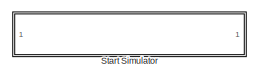
[diagram: root canvas - part 1/3, top left region]
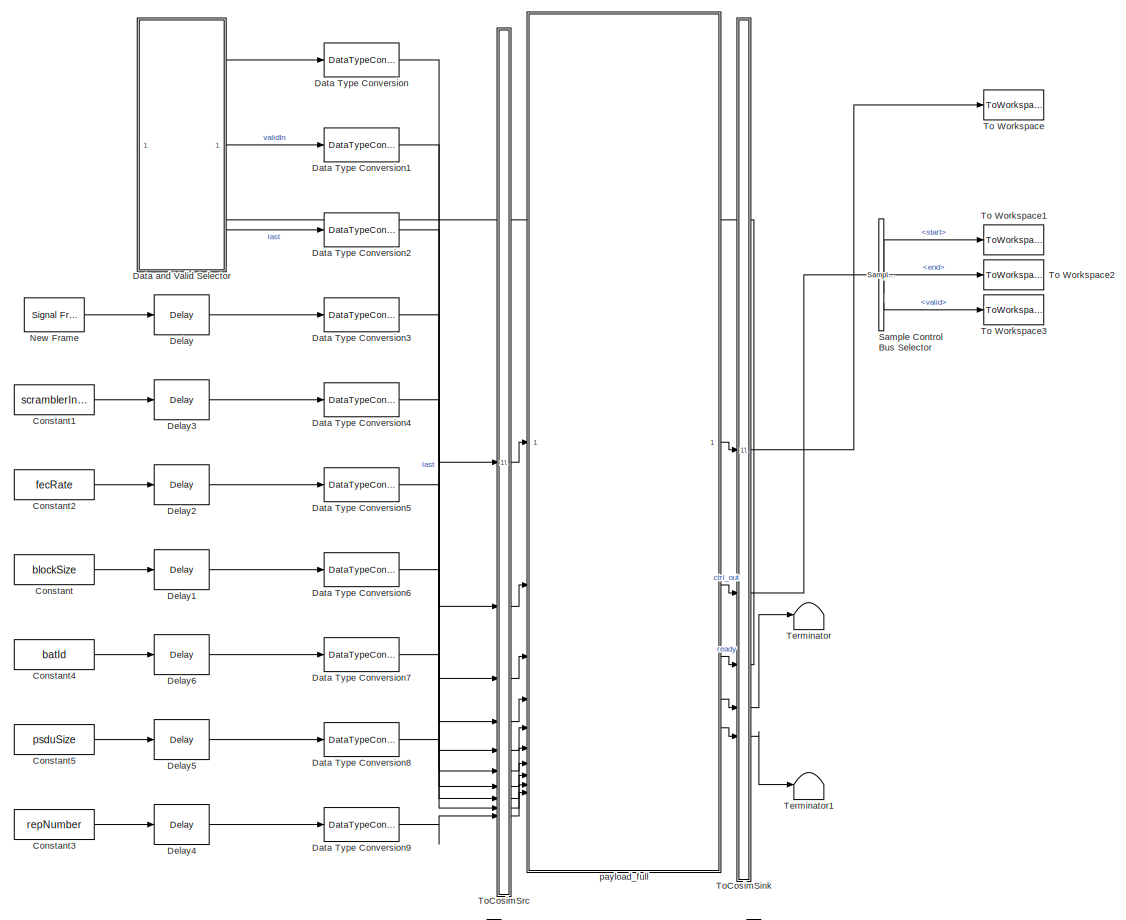
[diagram: root canvas - part 2/3, central region]
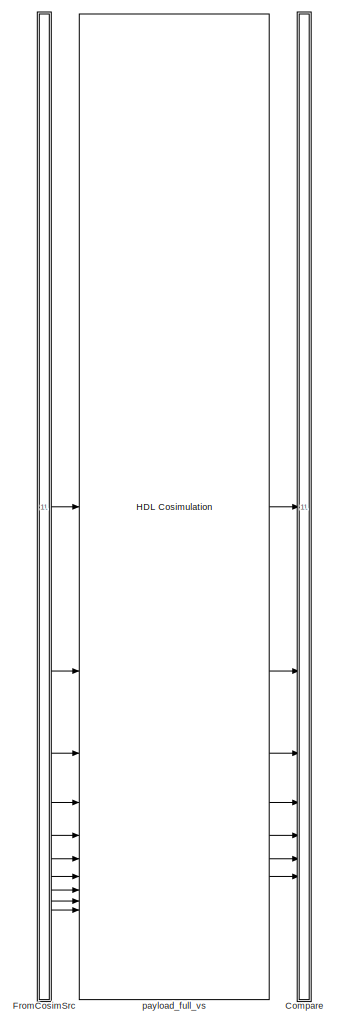
[diagram: root canvas - part 3/3, bottom right region]
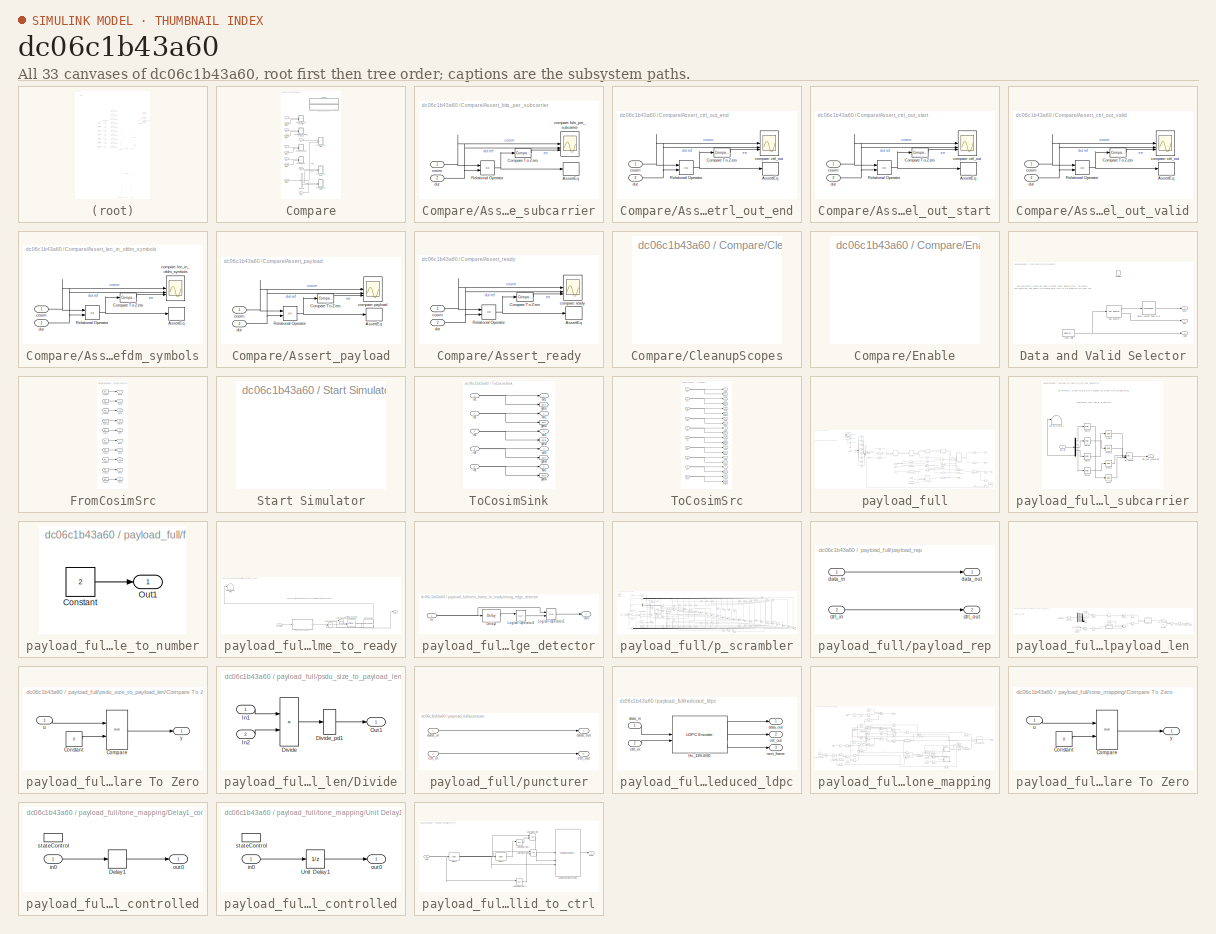
[diagram: thumbnail index - all 33 canvases of the model, root first then tree order]
MODEL slx_dc06c1b43a60
KIND model
CONFIG AbsTol = auto
CONFIG EnableMultiTasking = off
CONFIG FixedStep = auto
CONFIG MaxStep = auto
CONFIG MinStep = auto
CONFIG RelTol = 1e-3
CONFIG SampleTimeConstraint = Unconstrained
CONFIG SolverName = VariableStepAuto
CONFIG StartTime = 0.0
CONFIG StopTime = 10.0
BLOCK [SubSystem] Compare
BLOCK [SubSystem] Compare/Assert_bits_per_subcarrier
  LibrarySourceBlock = hdlmdlgenlib/AssertEq
BLOCK [Assertion] Compare/Assert_bits_per_subcarrier/AssertEq
BLOCK [Reference] Compare/Assert_bits_per_subcarrier/Compare To Zero  REF=simulink/Logic and Bit
Operations/Compare
To Zero
  SourceBlock = simulink/Logic and Bit\nOperations/Compare\nTo Zero
  SourceType = Compare To Zero
BLOCK [RelationalOperator] Compare/Assert_bits_per_subcarrier/Relational Operator
  InputSameDT = off
  Operator = ==
  OutDataTypeStr = boolean
BLOCK [Scope] Compare/Assert_bits_per_subcarrier/compare: bits_per_subcarrier
  Floating = off
  NumInputPorts = 3
  ScopeSpecificationString = Simulink.scopes.TimeScopeBlockCfg('CurrentConfiguration', extmgr.ConfigurationSet(extmgr.Configuration('Core','General UI',true,'MessageLogAutoOpenMode','for warn/fail messages','ShowCloseAll',true,'ShowBringAllForward',true),extmgr.Configuration('Core','Source UI',true,'PlaybackToolbar',true),extmgr.Configuration('Sources','WiredSimulink',true,'PointsPerSignal',50000,'DataLoggingDecimation','1','...<+3551ch>
BLOCK [Inport] Compare/Assert_bits_per_subcarrier/cosim
BLOCK [Inport] Compare/Assert_bits_per_subcarrier/dut
  Port = 2
BLOCK [SubSystem] Compare/Assert_ctrl_out_end
  LibrarySourceBlock = hdlmdlgenlib/AssertEq
BLOCK [Assertion] Compare/Assert_ctrl_out_end/AssertEq
BLOCK [Reference] Compare/Assert_ctrl_out_end/Compare To Zero  REF=simulink/Logic and Bit
Operations/Compare
To Zero
  SourceBlock = simulink/Logic and Bit\nOperations/Compare\nTo Zero
  SourceType = Compare To Zero
BLOCK [RelationalOperator] Compare/Assert_ctrl_out_end/Relational Operator
  InputSameDT = off
  Operator = ==
  OutDataTypeStr = boolean
BLOCK [Scope] Compare/Assert_ctrl_out_end/compare: ctrl_out
  Floating = off
  NumInputPorts = 3
  ScopeSpecificationString = Simulink.scopes.TimeScopeBlockCfg('CurrentConfiguration', extmgr.ConfigurationSet(extmgr.Configuration('Core','General UI',true,'MessageLogAutoOpenMode','for warn/fail messages','ShowCloseAll',true,'ShowBringAllForward',true),extmgr.Configuration('Core','Source UI',true,'PlaybackToolbar',true),extmgr.Configuration('Sources','WiredSimulink',true,'PointsPerSignal',50000,'DataLoggingDecimation','1','...<+3577ch>  <repeated x4 — deduplicated; at blocks: compare: ctrl_out, compare: len_in_ofdm_symbols>
BLOCK [Inport] Compare/Assert_ctrl_out_end/cosim
BLOCK [Inport] Compare/Assert_ctrl_out_end/dut
  Port = 2
BLOCK [SubSystem] Compare/Assert_ctrl_out_start
  LibrarySourceBlock = hdlmdlgenlib/AssertEq
BLOCK [Assertion] Compare/Assert_ctrl_out_start/AssertEq
BLOCK [Reference] Compare/Assert_ctrl_out_start/Compare To Zero  REF=simulink/Logic and Bit
Operations/Compare
To Zero
  SourceBlock = simulink/Logic and Bit\nOperations/Compare\nTo Zero
  SourceType = Compare To Zero
BLOCK [RelationalOperator] Compare/Assert_ctrl_out_start/Relational Operator
  InputSameDT = off
  Operator = ==
  OutDataTypeStr = boolean
BLOCK [Scope] Compare/Assert_ctrl_out_start/compare: ctrl_out
  Floating = off
  NumInputPorts = 3
BLOCK [Inport] Compare/Assert_ctrl_out_start/cosim
BLOCK [Inport] Compare/Assert_ctrl_out_start/dut
  Port = 2
BLOCK [SubSystem] Compare/Assert_ctrl_out_valid
  LibrarySourceBlock = hdlmdlgenlib/AssertEq
BLOCK [Assertion] Compare/Assert_ctrl_out_valid/AssertEq
BLOCK [Reference] Compare/Assert_ctrl_out_valid/Compare To Zero  REF=simulink/Logic and Bit
Operations/Compare
To Zero
  SourceBlock = simulink/Logic and Bit\nOperations/Compare\nTo Zero
  SourceType = Compare To Zero
BLOCK [RelationalOperator] Compare/Assert_ctrl_out_valid/Relational Operator
  InputSameDT = off
  Operator = ==
  OutDataTypeStr = boolean
BLOCK [Scope] Compare/Assert_ctrl_out_valid/compare: ctrl_out
  Floating = off
  NumInputPorts = 3
BLOCK [Inport] Compare/Assert_ctrl_out_valid/cosim
BLOCK [Inport] Compare/Assert_ctrl_out_valid/dut
  Port = 2
BLOCK [SubSystem] Compare/Assert_len_in_ofdm_symbols
  LibrarySourceBlock = hdlmdlgenlib/AssertEq
BLOCK [Assertion] Compare/Assert_len_in_ofdm_symbols/AssertEq
BLOCK [Reference] Compare/Assert_len_in_ofdm_symbols/Compare To Zero  REF=simulink/Logic and Bit
Operations/Compare
To Zero
  SourceBlock = simulink/Logic and Bit\nOperations/Compare\nTo Zero
  SourceType = Compare To Zero
BLOCK [RelationalOperator] Compare/Assert_len_in_ofdm_symbols/Relational Operator
  InputSameDT = off
  Operator = ==
  OutDataTypeStr = boolean
BLOCK [Scope] Compare/Assert_len_in_ofdm_symbols/compare: len_in_ofdm_symbols
  Floating = off
  NumInputPorts = 3
BLOCK [Inport] Compare/Assert_len_in_ofdm_symbols/cosim
BLOCK [Inport] Compare/Assert_len_in_ofdm_symbols/dut
  Port = 2
BLOCK [SubSystem] Compare/Assert_payload
  LibrarySourceBlock = hdlmdlgenlib/AssertEq
BLOCK [Assertion] Compare/Assert_payload/AssertEq
BLOCK [Reference] Compare/Assert_payload/Compare To Zero  REF=simulink/Logic and Bit
Operations/Compare
To Zero
  SourceBlock = simulink/Logic and Bit\nOperations/Compare\nTo Zero
  SourceType = Compare To Zero
BLOCK [RelationalOperator] Compare/Assert_payload/Relational Operator
  InputSameDT = off
  Operator = ==
  OutDataTypeStr = boolean
BLOCK [Scope] Compare/Assert_payload/compare: payload
  Floating = off
  NumInputPorts = 3
  ScopeSpecificationString = Simulink.scopes.TimeScopeBlockCfg('CurrentConfiguration', extmgr.ConfigurationSet(extmgr.Configuration('Core','General UI',true,'MessageLogAutoOpenMode','for warn/fail messages','ShowCloseAll',true,'ShowBringAllForward',true),extmgr.Configuration('Core','Source UI',true,'PlaybackToolbar',true),extmgr.Configuration('Sources','WiredSimulink',true,'PointsPerSignal',50000,'DataLoggingDecimation','1','...<+3551ch>
BLOCK [Inport] Compare/Assert_payload/cosim
BLOCK [Inport] Compare/Assert_payload/dut
  Port = 2
BLOCK [SubSystem] Compare/Assert_ready
  LibrarySourceBlock = hdlmdlgenlib/AssertEq
BLOCK [Assertion] Compare/Assert_ready/AssertEq
BLOCK [Reference] Compare/Assert_ready/Compare To Zero  REF=simulink/Logic and Bit
Operations/Compare
To Zero
  SourceBlock = simulink/Logic and Bit\nOperations/Compare\nTo Zero
  SourceType = Compare To Zero
BLOCK [RelationalOperator] Compare/Assert_ready/Relational Operator
  InputSameDT = off
  Operator = ==
  OutDataTypeStr = boolean
BLOCK [Scope] Compare/Assert_ready/compare: ready
  Floating = off
  NumInputPorts = 3
  ScopeSpecificationString = Simulink.scopes.TimeScopeBlockCfg('CurrentConfiguration', extmgr.ConfigurationSet(extmgr.Configuration('Core','General UI',true,'MessageLogAutoOpenMode','for warn/fail messages','ShowCloseAll',true,'ShowBringAllForward',true),extmgr.Configuration('Core','Source UI',true,'PlaybackToolbar',true),extmgr.Configuration('Sources','WiredSimulink',true,'PointsPerSignal',50000,'DataLoggingDecimation','1','...<+3552ch>
BLOCK [Inport] Compare/Assert_ready/cosim
BLOCK [Inport] Compare/Assert_ready/dut
  Port = 2
BLOCK [BusSelector] Compare/BusSel
  OutputSignals = start,end,valid
BLOCK [SubSystem] Compare/CleanupScopes
  OpenFcn = blkName = gcb; %self block\nidx = regexp(blkName, '/CleanupScopes$', 'once');\nblkParent = blkName(1:idx-1);\nblks=find_system(blkParent, 'LookUnderMasks', 'all','blocktype', 'Scope');\nfor itr = 1:length(blks)\n	 hScopeCfg = get_param(blks{itr},'ScopeConfiguration');\n	 hScopeCfg.Visible = ~ hScopeCfg.Visible;\nend\ndrawnow;
BLOCK [SubSystem] Compare/Enable
  OpenFcn = blkName = gcb;\nidx = regexp(blkName, '/Enable$', 'once');\nblkParent = blkName(1:idx-1);\nblks=find_system(blkParent, 'LookUnderMasks', 'all','blocktype', 'Assertion');\ne = get_param(blks{1}, 'Enabled');\nif strcmp(e, 'on'), f= 'off';, else, f = 'on';, end\nfor ii=1:length(blks), set_param(blks{ii}, 'Enabled', f);, end\nset_param(gcb, 'MaskDisplay',['fprintf(message(''hdlcoder:cosim:vnl_dblclick_assert...<+47ch>
BLOCK [From] Compare/from1
  GotoTag = out1
  TagVisibility = global
BLOCK [From] Compare/from2
  GotoTag = out2
  TagVisibility = global
BLOCK [From] Compare/from3
  GotoTag = out3
  TagVisibility = global
BLOCK [From] Compare/from4
  GotoTag = out4
  TagVisibility = global
BLOCK [From] Compare/from5
  GotoTag = out5
  TagVisibility = global
BLOCK [Inport] Compare/in1
BLOCK [Inport] Compare/in2
  Port = 2
BLOCK [Inport] Compare/in3
  Port = 3
BLOCK [Inport] Compare/in4
  Port = 4
BLOCK [Inport] Compare/in5
  Port = 5
BLOCK [Inport] Compare/in6
  Port = 6
BLOCK [Inport] Compare/in7
  Port = 7
BLOCK [Constant] Constant
  OutDataTypeStr = boolean
  SampleTime = 1/fs
  Value = blockSize
  VectorParams1D = off
BLOCK [Constant] Constant1
  OutDataTypeStr = boolean
  SampleTime = 1/fs
  Value = scramblerInit
  VectorParams1D = off
BLOCK [Constant] Constant2
  OutDataTypeStr = boolean
  SampleTime = 1/fs
  Value = fecRate
  VectorParams1D = off
BLOCK [Constant] Constant3
  OutDataTypeStr = boolean
  SampleTime = 1/fs
  Value = repNumber
  VectorParams1D = off
BLOCK [Constant] Constant4
  OutDataTypeStr = boolean
  SampleTime = 1/fs
  Value = batId
  VectorParams1D = off
BLOCK [Constant] Constant5
  OutDataTypeStr = boolean
  SampleTime = 1/fs
  Value = psduSize
  VectorParams1D = off
BLOCK [DataTypeConversion] Data Type Conversion
  OutDataTypeStr = uint8
  RndMeth = Floor
  SaturateOnIntegerOverflow = off
BLOCK [DataTypeConversion] Data Type Conversion1
  OutDataTypeStr = boolean
  RndMeth = Floor
  SaturateOnIntegerOverflow = off
BLOCK [DataTypeConversion] Data Type Conversion2
  OutDataTypeStr = boolean
  RndMeth = Floor
  SaturateOnIntegerOverflow = off
BLOCK [DataTypeConversion] Data Type Conversion3
  OutDataTypeStr = boolean
  RndMeth = Floor
  SaturateOnIntegerOverflow = off
BLOCK [DataTypeConversion] Data Type Conversion4
  OutDataTypeStr = boolean
  RndMeth = Floor
  SaturateOnIntegerOverflow = off
BLOCK [DataTypeConversion] Data Type Conversion5
  OutDataTypeStr = boolean
  RndMeth = Floor
  SaturateOnIntegerOverflow = off
BLOCK [DataTypeConversion] Data Type Conversion6
  OutDataTypeStr = boolean
  RndMeth = Floor
  SaturateOnIntegerOverflow = off
BLOCK [DataTypeConversion] Data Type Conversion7
  OutDataTypeStr = boolean
  RndMeth = Floor
  SaturateOnIntegerOverflow = off
BLOCK [DataTypeConversion] Data Type Conversion8
  OutDataTypeStr = boolean
  RndMeth = Floor
  SaturateOnIntegerOverflow = off
BLOCK [DataTypeConversion] Data Type Conversion9
  OutDataTypeStr = boolean
  RndMeth = Floor
  SaturateOnIntegerOverflow = off
BLOCK [SubSystem] Data and Valid Selector
  TreatAsAtomicUnit = on
BLOCK [LookupNDDirect] Data and Valid Selector/Direct Lookup Table (n-D)
  DiagnosticForOutOfRangeInput = Error
  NumberOfTableDimensions = 1
  Table = dataChars
  TableDataTypeStr = uint8
BLOCK [EnablePort] Data and Valid Selector/Enable
BLOCK [Reference] Data and Valid Selector/HDL Counter  REF=hdlsllib/Sources/HDL Counter
  SourceBlock = hdlsllib/Sources/HDL Counter
  SourceType = HDL Counter
BLOCK [Reference] Data and Valid Selector/Input Valid  REF=dspsrcs4/Signal From
Workspace
  SourceBlock = dspsrcs4/Signal From\nWorkspace
  SourceType = Signal From Workspace
BLOCK [Outport] Data and Valid Selector/data
  InitialOutput = 0
  VectorParamsAs1DForOutWhenUnconnected = off
BLOCK [Outport] Data and Valid Selector/last
  Port = 3
  VectorParamsAs1DForOutWhenUnconnected = off
BLOCK [Outport] Data and Valid Selector/valid
  InitialOutput = 0
  Port = 2
  VectorParamsAs1DForOutWhenUnconnected = off
BLOCK [Delay] Delay
  DelayLength = 1
  InitialCondition = 0
  InputPortMap = u0
  UseCircularBuffer = on
  UserDataPersistent = on
BLOCK [Delay] Delay1
  DelayLength = 1
  InitialCondition = 0
  InputPortMap = u0
  UseCircularBuffer = on
  UserDataPersistent = on
BLOCK [Delay] Delay2
  DelayLength = 1
  InitialCondition = 0
  InputPortMap = u0
  UseCircularBuffer = on
  UserDataPersistent = on
BLOCK [Delay] Delay3
  DelayLength = 1
  InitialCondition = 0
  InputPortMap = u0
  UseCircularBuffer = on
  UserDataPersistent = on
BLOCK [Delay] Delay4
  DelayLength = 1
  InitialCondition = 0
  InputPortMap = u0
  UseCircularBuffer = on
  UserDataPersistent = on
BLOCK [Delay] Delay5
  DelayLength = 1
  InitialCondition = 0
  InputPortMap = u0
  UseCircularBuffer = on
  UserDataPersistent = on
BLOCK [Delay] Delay6
  DelayLength = 1
  InitialCondition = 0
  InputPortMap = u0
  UseCircularBuffer = on
  UserDataPersistent = on
BLOCK [SubSystem] FromCosimSrc
BLOCK [From] FromCosimSrc/from1
  GotoTag = in1
  TagVisibility = global
BLOCK [From] FromCosimSrc/from10
  GotoTag = in10
  TagVisibility = global
BLOCK [From] FromCosimSrc/from2
  GotoTag = in2
  TagVisibility = global
BLOCK [From] FromCosimSrc/from3
  GotoTag = in3
  TagVisibility = global
BLOCK [From] FromCosimSrc/from4
  GotoTag = in4
  TagVisibility = global
BLOCK [From] FromCosimSrc/from5
  GotoTag = in5
  TagVisibility = global
BLOCK [From] FromCosimSrc/from6
  GotoTag = in6
  TagVisibility = global
BLOCK [From] FromCosimSrc/from7
  GotoTag = in7
  TagVisibility = global
BLOCK [From] FromCosimSrc/from8
  GotoTag = in8
  TagVisibility = global
BLOCK [From] FromCosimSrc/from9
  GotoTag = in9
  TagVisibility = global
BLOCK [Outport] FromCosimSrc/out1
BLOCK [Outport] FromCosimSrc/out10
  Port = 10
BLOCK [Outport] FromCosimSrc/out2
  Port = 2
BLOCK [Outport] FromCosimSrc/out3
  Port = 3
BLOCK [Outport] FromCosimSrc/out4
  Port = 4
BLOCK [Outport] FromCosimSrc/out5
  Port = 5
BLOCK [Outport] FromCosimSrc/out6
  Port = 6
BLOCK [Outport] FromCosimSrc/out7
  Port = 7
BLOCK [Outport] FromCosimSrc/out8
  Port = 8
BLOCK [Outport] FromCosimSrc/out9
  Port = 9
BLOCK [Reference] New Frame  REF=dspsrcs4/Signal From
Workspace
  SourceBlock = dspsrcs4/Signal From\nWorkspace
  SourceType = Signal From Workspace
BLOCK [Reference] Sample Control Bus Selector  REF=whdlutilities/Sample Control
Bus Selector
  SourceBlock = whdlutilities/Sample Control\nBus Selector
BLOCK [SubSystem] Start Simulator
  OpenFcn = cosimDirName = pwd;\ncd 'hdl_prj/hdlsrc/HDLPayloadFull';\n[s,r] = system('vivado -mode batch -source gm_HDLPayloadFull_vs.tcl','-echo');\ncd (cosimDirName);\nclear cosimDirName;\nif s\n   error('Failed to create Vivado HDL design DLL using script gm_HDLPayloadFull_vs.tcl.');\nend
BLOCK [Terminator] Terminator
BLOCK [Terminator] Terminator1
BLOCK [ToWorkspace] To Workspace
  MaxDataPoints = inf
  SampleTime = 1/(8*fs)
  Save2DSignal = 2-D array (concatenate along first dimension)
  VariableName = dataOut
BLOCK [ToWorkspace] To Workspace1
  MaxDataPoints = inf
  SampleTime = 1/(8*fs)
  Save2DSignal = 2-D array (concatenate along first dimension)
  VariableName = startOut
BLOCK [ToWorkspace] To Workspace2
  MaxDataPoints = inf
  SampleTime = 1/(8*fs)
  Save2DSignal = 2-D array (concatenate along first dimension)
  VariableName = endOut
BLOCK [ToWorkspace] To Workspace3
  MaxDataPoints = inf
  SampleTime = 1/(8*fs)
  Save2DSignal = 2-D array (concatenate along first dimension)
  VariableName = validOut
BLOCK [SubSystem] ToCosimSink
BLOCK [Goto] ToCosimSink/goto1
  GotoTag = out1
  TagVisibility = global
BLOCK [Goto] ToCosimSink/goto2
  GotoTag = out2
  TagVisibility = global
BLOCK [Goto] ToCosimSink/goto3
  GotoTag = out3
  TagVisibility = global
BLOCK [Goto] ToCosimSink/goto4
  GotoTag = out4
  TagVisibility = global
BLOCK [Goto] ToCosimSink/goto5
  GotoTag = out5
  TagVisibility = global
BLOCK [Inport] ToCosimSink/in1
BLOCK [Inport] ToCosimSink/in2
  Port = 2
BLOCK [Inport] ToCosimSink/in3
  Port = 3
BLOCK [Inport] ToCosimSink/in4
  Port = 4
BLOCK [Inport] ToCosimSink/in5
  Port = 5
BLOCK [Outport] ToCosimSink/out1
BLOCK [Outport] ToCosimSink/out2
  Port = 2
BLOCK [Outport] ToCosimSink/out3
  Port = 3
BLOCK [Outport] ToCosimSink/out4
  Port = 4
BLOCK [Outport] ToCosimSink/out5
  Port = 5
BLOCK [SubSystem] ToCosimSrc
BLOCK [Goto] ToCosimSrc/goto1
  GotoTag = in1
  TagVisibility = global
BLOCK [Goto] ToCosimSrc/goto10
  GotoTag = in10
  TagVisibility = global
BLOCK [Goto] ToCosimSrc/goto2
  GotoTag = in2
  TagVisibility = global
BLOCK [Goto] ToCosimSrc/goto3
  GotoTag = in3
  TagVisibility = global
BLOCK [Goto] ToCosimSrc/goto4
  GotoTag = in4
  TagVisibility = global
BLOCK [Goto] ToCosimSrc/goto5
  GotoTag = in5
  TagVisibility = global
BLOCK [Goto] ToCosimSrc/goto6
  GotoTag = in6
  TagVisibility = global
BLOCK [Goto] ToCosimSrc/goto7
  GotoTag = in7
  TagVisibility = global
BLOCK [Goto] ToCosimSrc/goto8
  GotoTag = in8
  TagVisibility = global
BLOCK [Goto] ToCosimSrc/goto9
  GotoTag = in9
  TagVisibility = global
BLOCK [Inport] ToCosimSrc/in1
BLOCK [Inport] ToCosimSrc/in10
  Port = 10
BLOCK [Inport] ToCosimSrc/in2
  Port = 2
BLOCK [Inport] ToCosimSrc/in3
  Port = 3
BLOCK [Inport] ToCosimSrc/in4
  Port = 4
BLOCK [Inport] ToCosimSrc/in5
  Port = 5
BLOCK [Inport] ToCosimSrc/in6
  Port = 6
BLOCK [Inport] ToCosimSrc/in7
  Port = 7
BLOCK [Inport] ToCosimSrc/in8
  Port = 8
BLOCK [Inport] ToCosimSrc/in9
  Port = 9
BLOCK [Outport] ToCosimSrc/out1
BLOCK [Outport] ToCosimSrc/out10
  Port = 10
BLOCK [Outport] ToCosimSrc/out2
  Port = 2
BLOCK [Outport] ToCosimSrc/out3
  Port = 3
BLOCK [Outport] ToCosimSrc/out4
  Port = 4
BLOCK [Outport] ToCosimSrc/out5
  Port = 5
BLOCK [Outport] ToCosimSrc/out6
  Port = 6
BLOCK [Outport] ToCosimSrc/out7
  Port = 7
BLOCK [Outport] ToCosimSrc/out8
  Port = 8
BLOCK [Outport] ToCosimSrc/out9
  Port = 9
BLOCK [SubSystem] payload_full
BLOCK [Delay] payload_full/Delay
  DelayLength = double(1)
  InitialCondition = 0
  InputPortMap = u0
  SampleTime = 0.125
BLOCK [Delay] payload_full/Delay1
  DelayLength = double(1)
  InitialCondition = 0
  InputPortMap = u0
  SampleTime = 0.125
BLOCK [Delay] payload_full/Delay2
  DelayLength = double(1)
  InitialCondition = 0
  InputPortMap = u0
  SampleTime = 1
BLOCK [Delay] payload_full/Delay3
  DelayLength = double(1)
  InitialCondition = 0
  InputPortMap = u0
  SampleTime = 1
BLOCK [Delay] payload_full/Delay4
  DelayLength = double(1)
  InitialCondition = 0
  InputPortMap = u0
  SampleTime = 1
BLOCK [Reference] payload_full/From  REF=hdlmdlgenlib/Buffer
  SourceBlock = hdlmdlgenlib/Buffer
  SourceType = Buffer/Wire
BLOCK [Reference] payload_full/Goto  REF=hdlmdlgenlib/Buffer
  SourceBlock = hdlmdlgenlib/Buffer
  SourceType = Buffer/Wire
BLOCK [Logic] payload_full/Logical Operator
  AllPortsSameDT = off
  OutDataTypeStr = boolean
  SampleTime = 1
BLOCK [Logic] payload_full/Logical Operator1
  AllPortsSameDT = off
  OutDataTypeStr = boolean
  SampleTime = 1
BLOCK [Logic] payload_full/Logical Operator5
  AllPortsSameDT = off
  Operator = OR
  OutDataTypeStr = boolean
  SampleTime = 1
BLOCK [RateTransition] payload_full/Rate Transition
  InitialCondition = double(0)
  OutPortSampleTimeMultiple = 8
  OutPortSampleTimeOpt = Multiple of input port sample time
BLOCK [RateTransition] payload_full/Rate Transition1
  OutPortSampleTimeMultiple = 1/8
  OutPortSampleTimeOpt = Multiple of input port sample time
BLOCK [RateTransition] payload_full/Rate Transition4
  InitialCondition = fi(0,0,4,0,"hex","0")
  OutPortSampleTimeMultiple = 1/8
  OutPortSampleTimeOpt = Multiple of input port sample time
BLOCK [RateTransition] payload_full/Rate Transition5
  InitialCondition = fi(0,0,29,0,"hex","00000000")
  OutPortSampleTimeMultiple = 1/8
  OutPortSampleTimeOpt = Multiple of input port sample time
BLOCK [RateTransition] payload_full/Rate Transition6
  OutPortSampleTimeMultiple = 1/8
  OutPortSampleTimeOpt = Multiple of input port sample time
BLOCK [Reference] payload_full/Serializer1D  REF=hdlsllib/HDL Operations/Serializer1D
  SourceBlock = hdlsllib/HDL Operations/Serializer1D
  SourceType = Serializer1D
BLOCK [Switch] payload_full/Switch1
  Criteria = u2 ~= 0
  InputSameDT = off
  OutDataTypeStr = boolean
  SampleTime = 1
  SaturateOnIntegerOverflow = off
  Threshold = double(0)
BLOCK [UnitDelay] payload_full/Unit Delay1
  SampleTime = 1
BLOCK [Inport] payload_full/bat_id
  OutDataTypeStr = boolean
  Port = 8
  PortDimensions = [1 5]
  SampleTime = 1
BLOCK [SubSystem] payload_full/batid_to_bits_per_subcarrier
BLOCK [Reference] payload_full/batid_to_bits_per_subcarrier/Bit Concat  REF=hdlsllib/Logic and Bit
Operations/Bit Concat
  SourceBlock = hdlsllib/Logic and Bit\nOperations/Bit Concat
  SourceType = Bit Concat
BLOCK [Reference] payload_full/batid_to_bits_per_subcarrier/From  REF=hdlmdlgenlib/Buffer
  SourceBlock = hdlmdlgenlib/Buffer
  SourceType = Buffer/Wire
BLOCK [Reference] payload_full/batid_to_bits_per_subcarrier/From1  REF=hdlmdlgenlib/Buffer
  SourceBlock = hdlmdlgenlib/Buffer
  SourceType = Buffer/Wire
BLOCK [Reference] payload_full/batid_to_bits_per_subcarrier/From2  REF=hdlmdlgenlib/Buffer
  SourceBlock = hdlmdlgenlib/Buffer
  SourceType = Buffer/Wire
BLOCK [Reference] payload_full/batid_to_bits_per_subcarrier/From3  REF=hdlmdlgenlib/Buffer
  SourceBlock = hdlmdlgenlib/Buffer
  SourceType = Buffer/Wire
BLOCK [Reference] payload_full/batid_to_bits_per_subcarrier/Goto1  REF=hdlmdlgenlib/Buffer
  SourceBlock = hdlmdlgenlib/Buffer
  SourceType = Buffer/Wire
BLOCK [Reference] payload_full/batid_to_bits_per_subcarrier/Goto2  REF=hdlmdlgenlib/Buffer
  SourceBlock = hdlmdlgenlib/Buffer
  SourceType = Buffer/Wire
BLOCK [Reference] payload_full/batid_to_bits_per_subcarrier/Goto3  REF=hdlmdlgenlib/Buffer
  SourceBlock = hdlmdlgenlib/Buffer
  SourceType = Buffer/Wire
BLOCK [Reference] payload_full/batid_to_bits_per_subcarrier/Goto4  REF=hdlmdlgenlib/Buffer
  SourceBlock = hdlmdlgenlib/Buffer
  SourceType = Buffer/Wire
BLOCK [Inport] payload_full/batid_to_bits_per_subcarrier/bat_id
  OutDataTypeStr = boolean
  PortDimensions = [1 5]
  SampleTime = 1
BLOCK [Terminator] payload_full/batid_to_bits_per_subcarrier/bat_id_4_term4
BLOCK [Outport] payload_full/batid_to_bits_per_subcarrier/bits_per_subcarrier
  SampleTime = 1
BLOCK [Demux] payload_full/batid_to_bits_per_subcarrier/t
  Outputs = 5
BLOCK [Outport] payload_full/bits_per_subcarrier
  Port = 5
  SampleTime = 0.125
BLOCK [Inport] payload_full/block_size
  OutDataTypeStr = boolean
  Port = 7
  PortDimensions = [1 2]
  SampleTime = 1
BLOCK [Terminator] payload_full/block_size_term6
BLOCK [Concatenate] payload_full/concatenate
  ConcatenateDimension = 2
  Mode = Multidimensional array
  NumInputs = 8
BLOCK [Outport] payload_full/ctrl_out
  Port = 2
  SampleTime = 0.125
BLOCK [Inport] payload_full/data_in
  OutDataTypeStr = uint8
  SampleTime = 1
BLOCK [Delay] payload_full/delayMatch
  DelayLength = double(3)
  InitialCondition = 0
  InputPortMap = u0
  SampleTime = 0.125
BLOCK [Delay] payload_full/delayMatch1
  DelayLength = double(2)
  InitialCondition = 0
  InputPortMap = u0
  SampleTime = 0.125
BLOCK [Delay] payload_full/delayMatch2
  DelayLength = double(30)
  InitialCondition = 0
  InputPortMap = u0
  SampleTime = 1
BLOCK [Delay] payload_full/delayMatch3
  DelayLength = double(240)
  InitialCondition = 0
  InputPortMap = u0
  SampleTime = 0.125
BLOCK [Inport] payload_full/fec_rate
  OutDataTypeStr = boolean
  Port = 6
  PortDimensions = [1 3]
  SampleTime = 1
BLOCK [Terminator] payload_full/fec_rate_term5
BLOCK [SubSystem] payload_full/fec_rate_to_number
BLOCK [Constant] payload_full/fec_rate_to_number/Constant
  OutDataTypeStr = fixdt(0,4,0)
  SampleTime = -1
  Value = 2
BLOCK [Outport] payload_full/fec_rate_to_number/Out1
  SampleTime = 1
BLOCK [Inport] payload_full/last_frame
  OutDataTypeStr = boolean
  Port = 3
  SampleTime = 1
BLOCK [Outport] payload_full/len_in_ofdm_symbols
  Port = 4
  SampleTime = 0.125
BLOCK [Inport] payload_full/new_frame
  OutDataTypeStr = boolean
  Port = 4
  SampleTime = 1
BLOCK [SubSystem] payload_full/next_frame_to_ready
BLOCK [Reference] payload_full/next_frame_to_ready/HDL Counter  REF=hdlsllib/Sources/HDL Counter
  SourceBlock = hdlsllib/Sources/HDL Counter
  SourceType = HDL Counter
BLOCK [Terminator] payload_full/next_frame_to_ready/HDL Counter_term0
BLOCK [Logic] payload_full/next_frame_to_ready/Logical Operator2
  AllPortsSameDT = off
  IconShape = distinctive
  Operator = NOT
  OutDataTypeStr = boolean
BLOCK [Logic] payload_full/next_frame_to_ready/Logical Operator3
  AllPortsSameDT = off
  IconShape = distinctive
  Operator = OR
  OutDataTypeStr = boolean
BLOCK [Reference] payload_full/next_frame_to_ready/Unit Delay Enabled Synchronous  REF=hdlsllib/Discrete/Unit Delay Enabled
Synchronous
  SourceBlock = hdlsllib/Discrete/Unit Delay Enabled\nSynchronous
  SourceType = Unit Delay Enabled Synchronous
BLOCK [Inport] payload_full/next_frame_to_ready/next_frame
  OutDataTypeStr = boolean
  SampleTime = 1
BLOCK [Outport] payload_full/next_frame_to_ready/ready
  SampleTime = 1
BLOCK [SubSystem] payload_full/next_frame_to_ready/rising_edge_detector
BLOCK [Delay] payload_full/next_frame_to_ready/rising_edge_detector/Delay2
  DelayLength = 1
  InitialCondition = 0
  InputPortMap = u0
  UseCircularBuffer = on
  UserDataPersistent = on
BLOCK [Inport] payload_full/next_frame_to_ready/rising_edge_detector/In
  OutDataTypeStr = boolean
  SampleTime = 1
BLOCK [Logic] payload_full/next_frame_to_ready/rising_edge_detector/Logical Operator1
  AllPortsSameDT = off
  IconShape = distinctive
  OutDataTypeStr = boolean
BLOCK [Logic] payload_full/next_frame_to_ready/rising_edge_detector/Logical Operator2
  AllPortsSameDT = off
  IconShape = distinctive
  Operator = NOT
  OutDataTypeStr = boolean
BLOCK [Outport] payload_full/next_frame_to_ready/rising_edge_detector/Out
  SampleTime = 1
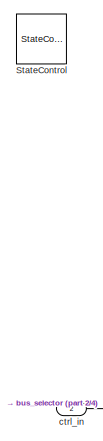
[diagram: payload_full/p_scrambler - part 1/4, top left region]
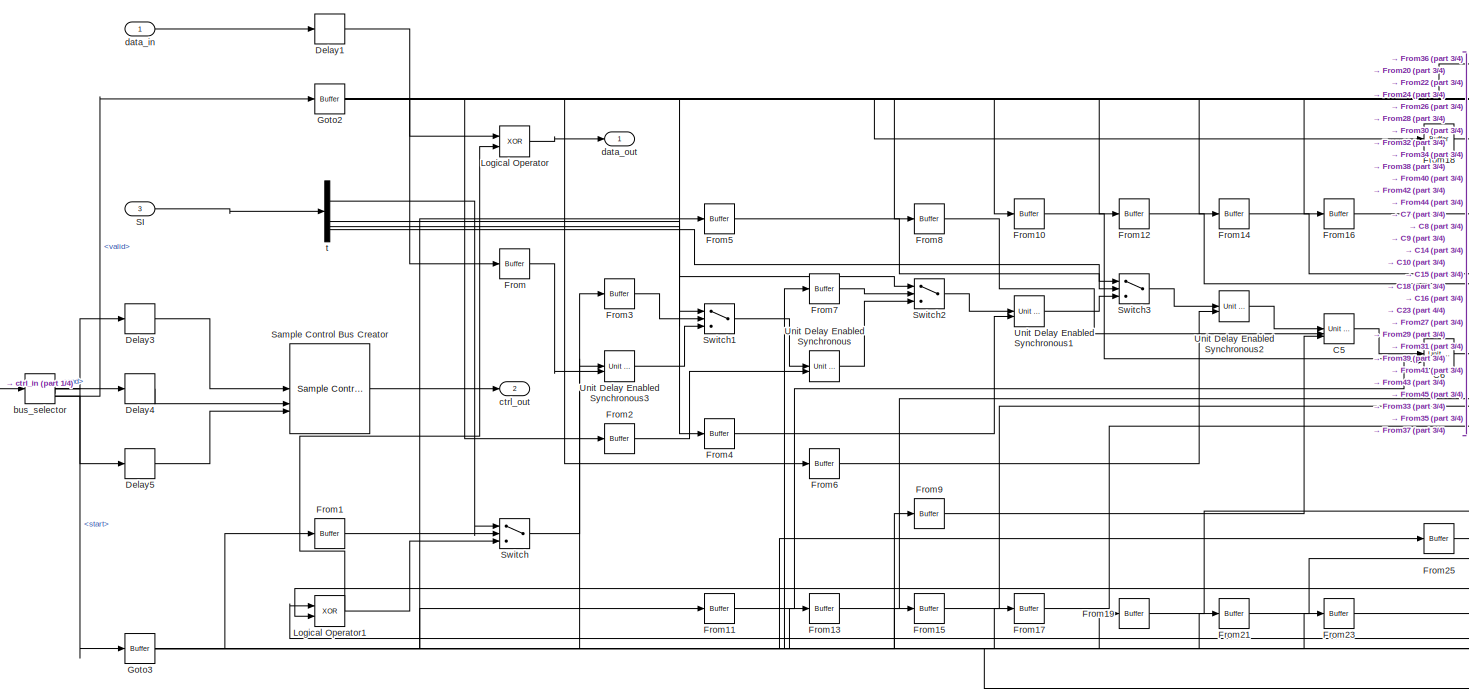
[diagram: payload_full/p_scrambler - part 2/4, left side, full height]
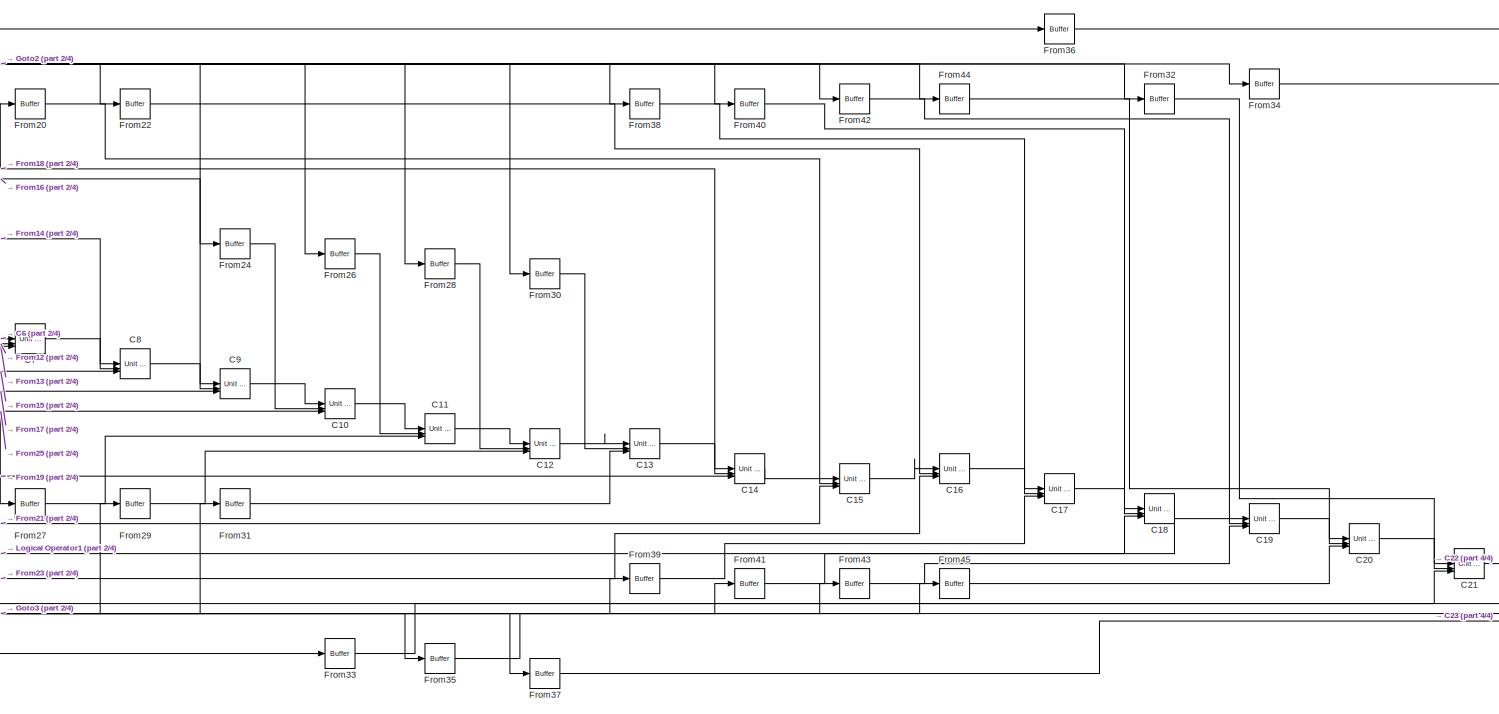
[diagram: payload_full/p_scrambler - part 3/4, right side, full height]
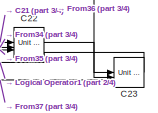
[diagram: payload_full/p_scrambler - part 4/4, bottom right region]
BLOCK [SubSystem] payload_full/p_scrambler
BLOCK [Reference] payload_full/p_scrambler/C10  REF=hdlsllib/Discrete/Unit Delay Enabled Resettable
Synchronous
  SourceBlock = hdlsllib/Discrete/Unit Delay Enabled Resettable\nSynchronous
  SourceType = Unit Delay Enabled Resettable Synchronous
BLOCK [Reference] payload_full/p_scrambler/C11  REF=hdlsllib/Discrete/Unit Delay Enabled Resettable
Synchronous
  SourceBlock = hdlsllib/Discrete/Unit Delay Enabled Resettable\nSynchronous
  SourceType = Unit Delay Enabled Resettable Synchronous
BLOCK [Reference] payload_full/p_scrambler/C12  REF=hdlsllib/Discrete/Unit Delay Enabled Resettable
Synchronous
  SourceBlock = hdlsllib/Discrete/Unit Delay Enabled Resettable\nSynchronous
  SourceType = Unit Delay Enabled Resettable Synchronous
BLOCK [Reference] payload_full/p_scrambler/C13  REF=hdlsllib/Discrete/Unit Delay Enabled Resettable
Synchronous
  SourceBlock = hdlsllib/Discrete/Unit Delay Enabled Resettable\nSynchronous
  SourceType = Unit Delay Enabled Resettable Synchronous
BLOCK [Reference] payload_full/p_scrambler/C14  REF=hdlsllib/Discrete/Unit Delay Enabled Resettable
Synchronous
  SourceBlock = hdlsllib/Discrete/Unit Delay Enabled Resettable\nSynchronous
  SourceType = Unit Delay Enabled Resettable Synchronous
BLOCK [Reference] payload_full/p_scrambler/C15  REF=hdlsllib/Discrete/Unit Delay Enabled Resettable
Synchronous
  SourceBlock = hdlsllib/Discrete/Unit Delay Enabled Resettable\nSynchronous
  SourceType = Unit Delay Enabled Resettable Synchronous
BLOCK [Reference] payload_full/p_scrambler/C16  REF=hdlsllib/Discrete/Unit Delay Enabled Resettable
Synchronous
  SourceBlock = hdlsllib/Discrete/Unit Delay Enabled Resettable\nSynchronous
  SourceType = Unit Delay Enabled Resettable Synchronous
BLOCK [Reference] payload_full/p_scrambler/C17  REF=hdlsllib/Discrete/Unit Delay Enabled Resettable
Synchronous
  SourceBlock = hdlsllib/Discrete/Unit Delay Enabled Resettable\nSynchronous
  SourceType = Unit Delay Enabled Resettable Synchronous
BLOCK [Reference] payload_full/p_scrambler/C18  REF=hdlsllib/Discrete/Unit Delay Enabled Resettable
Synchronous
  SourceBlock = hdlsllib/Discrete/Unit Delay Enabled Resettable\nSynchronous
  SourceType = Unit Delay Enabled Resettable Synchronous
BLOCK [Reference] payload_full/p_scrambler/C19  REF=hdlsllib/Discrete/Unit Delay Enabled Resettable
Synchronous
  SourceBlock = hdlsllib/Discrete/Unit Delay Enabled Resettable\nSynchronous
  SourceType = Unit Delay Enabled Resettable Synchronous
BLOCK [Reference] payload_full/p_scrambler/C20  REF=hdlsllib/Discrete/Unit Delay Enabled Resettable
Synchronous
  SourceBlock = hdlsllib/Discrete/Unit Delay Enabled Resettable\nSynchronous
  SourceType = Unit Delay Enabled Resettable Synchronous
BLOCK [Reference] payload_full/p_scrambler/C21  REF=hdlsllib/Discrete/Unit Delay Enabled Resettable
Synchronous
  SourceBlock = hdlsllib/Discrete/Unit Delay Enabled Resettable\nSynchronous
  SourceType = Unit Delay Enabled Resettable Synchronous
BLOCK [Reference] payload_full/p_scrambler/C22  REF=hdlsllib/Discrete/Unit Delay Enabled Resettable
Synchronous
  SourceBlock = hdlsllib/Discrete/Unit Delay Enabled Resettable\nSynchronous
  SourceType = Unit Delay Enabled Resettable Synchronous
BLOCK [Reference] payload_full/p_scrambler/C23  REF=hdlsllib/Discrete/Unit Delay Enabled Resettable
Synchronous
  SourceBlock = hdlsllib/Discrete/Unit Delay Enabled Resettable\nSynchronous
  SourceType = Unit Delay Enabled Resettable Synchronous
BLOCK [Reference] payload_full/p_scrambler/C5  REF=hdlsllib/Discrete/Unit Delay Enabled Resettable
Synchronous
  SourceBlock = hdlsllib/Discrete/Unit Delay Enabled Resettable\nSynchronous
  SourceType = Unit Delay Enabled Resettable Synchronous
BLOCK [Reference] payload_full/p_scrambler/C6  REF=hdlsllib/Discrete/Unit Delay Enabled Resettable
Synchronous
  SourceBlock = hdlsllib/Discrete/Unit Delay Enabled Resettable\nSynchronous
  SourceType = Unit Delay Enabled Resettable Synchronous
BLOCK [Reference] payload_full/p_scrambler/C7  REF=hdlsllib/Discrete/Unit Delay Enabled Resettable
Synchronous
  SourceBlock = hdlsllib/Discrete/Unit Delay Enabled Resettable\nSynchronous
  SourceType = Unit Delay Enabled Resettable Synchronous
BLOCK [Reference] payload_full/p_scrambler/C8  REF=hdlsllib/Discrete/Unit Delay Enabled Resettable
Synchronous
  SourceBlock = hdlsllib/Discrete/Unit Delay Enabled Resettable\nSynchronous
  SourceType = Unit Delay Enabled Resettable Synchronous
BLOCK [Reference] payload_full/p_scrambler/C9  REF=hdlsllib/Discrete/Unit Delay Enabled Resettable
Synchronous
  SourceBlock = hdlsllib/Discrete/Unit Delay Enabled Resettable\nSynchronous
  SourceType = Unit Delay Enabled Resettable Synchronous
BLOCK [Delay] payload_full/p_scrambler/Delay1
  DelayLength = double(1)
  InitialCondition = 0
  InputPortMap = u0
  SampleTime = 0.125
BLOCK [Delay] payload_full/p_scrambler/Delay3
  DelayLength = double(1)
  InitialCondition = 0
  InputPortMap = u0
  SampleTime = 0.125
BLOCK [Delay] payload_full/p_scrambler/Delay4
  DelayLength = double(1)
  InitialCondition = 0
  InputPortMap = u0
  SampleTime = 0.125
BLOCK [Delay] payload_full/p_scrambler/Delay5
  DelayLength = double(1)
  InitialCondition = 0
  InputPortMap = u0
  SampleTime = 0.125
BLOCK [Reference] payload_full/p_scrambler/From  REF=hdlmdlgenlib/Buffer
  SourceBlock = hdlmdlgenlib/Buffer
  SourceType = Buffer/Wire
BLOCK [Reference] payload_full/p_scrambler/From1  REF=hdlmdlgenlib/Buffer
  SourceBlock = hdlmdlgenlib/Buffer
  SourceType = Buffer/Wire
BLOCK [Reference] payload_full/p_scrambler/From10  REF=hdlmdlgenlib/Buffer
  SourceBlock = hdlmdlgenlib/Buffer
  SourceType = Buffer/Wire
BLOCK [Reference] payload_full/p_scrambler/From11  REF=hdlmdlgenlib/Buffer
  SourceBlock = hdlmdlgenlib/Buffer
  SourceType = Buffer/Wire
BLOCK [Reference] payload_full/p_scrambler/From12  REF=hdlmdlgenlib/Buffer
  SourceBlock = hdlmdlgenlib/Buffer
  SourceType = Buffer/Wire
BLOCK [Reference] payload_full/p_scrambler/From13  REF=hdlmdlgenlib/Buffer
  SourceBlock = hdlmdlgenlib/Buffer
  SourceType = Buffer/Wire
BLOCK [Reference] payload_full/p_scrambler/From14  REF=hdlmdlgenlib/Buffer
  SourceBlock = hdlmdlgenlib/Buffer
  SourceType = Buffer/Wire
BLOCK [Reference] payload_full/p_scrambler/From15  REF=hdlmdlgenlib/Buffer
  SourceBlock = hdlmdlgenlib/Buffer
  SourceType = Buffer/Wire
BLOCK [Reference] payload_full/p_scrambler/From16  REF=hdlmdlgenlib/Buffer
  SourceBlock = hdlmdlgenlib/Buffer
  SourceType = Buffer/Wire
BLOCK [Reference] payload_full/p_scrambler/From17  REF=hdlmdlgenlib/Buffer
  SourceBlock = hdlmdlgenlib/Buffer
  SourceType = Buffer/Wire
BLOCK [Reference] payload_full/p_scrambler/From18  REF=hdlmdlgenlib/Buffer
  SourceBlock = hdlmdlgenlib/Buffer
  SourceType = Buffer/Wire
BLOCK [Reference] payload_full/p_scrambler/From19  REF=hdlmdlgenlib/Buffer
  SourceBlock = hdlmdlgenlib/Buffer
  SourceType = Buffer/Wire
BLOCK [Reference] payload_full/p_scrambler/From2  REF=hdlmdlgenlib/Buffer
  SourceBlock = hdlmdlgenlib/Buffer
  SourceType = Buffer/Wire
BLOCK [Reference] payload_full/p_scrambler/From20  REF=hdlmdlgenlib/Buffer
  SourceBlock = hdlmdlgenlib/Buffer
  SourceType = Buffer/Wire
BLOCK [Reference] payload_full/p_scrambler/From21  REF=hdlmdlgenlib/Buffer
  SourceBlock = hdlmdlgenlib/Buffer
  SourceType = Buffer/Wire
BLOCK [Reference] payload_full/p_scrambler/From22  REF=hdlmdlgenlib/Buffer
  SourceBlock = hdlmdlgenlib/Buffer
  SourceType = Buffer/Wire
BLOCK [Reference] payload_full/p_scrambler/From23  REF=hdlmdlgenlib/Buffer
  SourceBlock = hdlmdlgenlib/Buffer
  SourceType = Buffer/Wire
BLOCK [Reference] payload_full/p_scrambler/From24  REF=hdlmdlgenlib/Buffer
  SourceBlock = hdlmdlgenlib/Buffer
  SourceType = Buffer/Wire
BLOCK [Reference] payload_full/p_scrambler/From25  REF=hdlmdlgenlib/Buffer
  SourceBlock = hdlmdlgenlib/Buffer
  SourceType = Buffer/Wire
BLOCK [Reference] payload_full/p_scrambler/From26  REF=hdlmdlgenlib/Buffer
  SourceBlock = hdlmdlgenlib/Buffer
  SourceType = Buffer/Wire
BLOCK [Reference] payload_full/p_scrambler/From27  REF=hdlmdlgenlib/Buffer
  SourceBlock = hdlmdlgenlib/Buffer
  SourceType = Buffer/Wire
BLOCK [Reference] payload_full/p_scrambler/From28  REF=hdlmdlgenlib/Buffer
  SourceBlock = hdlmdlgenlib/Buffer
  SourceType = Buffer/Wire
BLOCK [Reference] payload_full/p_scrambler/From29  REF=hdlmdlgenlib/Buffer
  SourceBlock = hdlmdlgenlib/Buffer
  SourceType = Buffer/Wire
BLOCK [Reference] payload_full/p_scrambler/From3  REF=hdlmdlgenlib/Buffer
  SourceBlock = hdlmdlgenlib/Buffer
  SourceType = Buffer/Wire
BLOCK [Reference] payload_full/p_scrambler/From30  REF=hdlmdlgenlib/Buffer
  SourceBlock = hdlmdlgenlib/Buffer
  SourceType = Buffer/Wire
BLOCK [Reference] payload_full/p_scrambler/From31  REF=hdlmdlgenlib/Buffer
  SourceBlock = hdlmdlgenlib/Buffer
  SourceType = Buffer/Wire
BLOCK [Reference] payload_full/p_scrambler/From32  REF=hdlmdlgenlib/Buffer
  SourceBlock = hdlmdlgenlib/Buffer
  SourceType = Buffer/Wire
BLOCK [Reference] payload_full/p_scrambler/From33  REF=hdlmdlgenlib/Buffer
  SourceBlock = hdlmdlgenlib/Buffer
  SourceType = Buffer/Wire
BLOCK [Reference] payload_full/p_scrambler/From34  REF=hdlmdlgenlib/Buffer
  SourceBlock = hdlmdlgenlib/Buffer
  SourceType = Buffer/Wire
BLOCK [Reference] payload_full/p_scrambler/From35  REF=hdlmdlgenlib/Buffer
  SourceBlock = hdlmdlgenlib/Buffer
  SourceType = Buffer/Wire
BLOCK [Reference] payload_full/p_scrambler/From36  REF=hdlmdlgenlib/Buffer
  SourceBlock = hdlmdlgenlib/Buffer
  SourceType = Buffer/Wire
BLOCK [Reference] payload_full/p_scrambler/From37  REF=hdlmdlgenlib/Buffer
  SourceBlock = hdlmdlgenlib/Buffer
  SourceType = Buffer/Wire
BLOCK [Reference] payload_full/p_scrambler/From38  REF=hdlmdlgenlib/Buffer
  SourceBlock = hdlmdlgenlib/Buffer
  SourceType = Buffer/Wire
BLOCK [Reference] payload_full/p_scrambler/From39  REF=hdlmdlgenlib/Buffer
  SourceBlock = hdlmdlgenlib/Buffer
  SourceType = Buffer/Wire
BLOCK [Reference] payload_full/p_scrambler/From4  REF=hdlmdlgenlib/Buffer
  SourceBlock = hdlmdlgenlib/Buffer
  SourceType = Buffer/Wire
BLOCK [Reference] payload_full/p_scrambler/From40  REF=hdlmdlgenlib/Buffer
  SourceBlock = hdlmdlgenlib/Buffer
  SourceType = Buffer/Wire
BLOCK [Reference] payload_full/p_scrambler/From41  REF=hdlmdlgenlib/Buffer
  SourceBlock = hdlmdlgenlib/Buffer
  SourceType = Buffer/Wire
BLOCK [Reference] payload_full/p_scrambler/From42  REF=hdlmdlgenlib/Buffer
  SourceBlock = hdlmdlgenlib/Buffer
  SourceType = Buffer/Wire
BLOCK [Reference] payload_full/p_scrambler/From43  REF=hdlmdlgenlib/Buffer
  SourceBlock = hdlmdlgenlib/Buffer
  SourceType = Buffer/Wire
BLOCK [Reference] payload_full/p_scrambler/From44  REF=hdlmdlgenlib/Buffer
  SourceBlock = hdlmdlgenlib/Buffer
  SourceType = Buffer/Wire
BLOCK [Reference] payload_full/p_scrambler/From45  REF=hdlmdlgenlib/Buffer
  SourceBlock = hdlmdlgenlib/Buffer
  SourceType = Buffer/Wire
BLOCK [Reference] payload_full/p_scrambler/From5  REF=hdlmdlgenlib/Buffer
  SourceBlock = hdlmdlgenlib/Buffer
  SourceType = Buffer/Wire
BLOCK [Reference] payload_full/p_scrambler/From6  REF=hdlmdlgenlib/Buffer
  SourceBlock = hdlmdlgenlib/Buffer
  SourceType = Buffer/Wire
BLOCK [Reference] payload_full/p_scrambler/From7  REF=hdlmdlgenlib/Buffer
  SourceBlock = hdlmdlgenlib/Buffer
  SourceType = Buffer/Wire
BLOCK [Reference] payload_full/p_scrambler/From8  REF=hdlmdlgenlib/Buffer
  SourceBlock = hdlmdlgenlib/Buffer
  SourceType = Buffer/Wire
BLOCK [Reference] payload_full/p_scrambler/From9  REF=hdlmdlgenlib/Buffer
  SourceBlock = hdlmdlgenlib/Buffer
  SourceType = Buffer/Wire
BLOCK [Reference] payload_full/p_scrambler/Goto2  REF=hdlmdlgenlib/Buffer
  SourceBlock = hdlmdlgenlib/Buffer
  SourceType = Buffer/Wire
BLOCK [Reference] payload_full/p_scrambler/Goto3  REF=hdlmdlgenlib/Buffer
  SourceBlock = hdlmdlgenlib/Buffer
  SourceType = Buffer/Wire
BLOCK [Logic] payload_full/p_scrambler/Logical Operator
  AllPortsSameDT = off
  Operator = XOR
  OutDataTypeStr = boolean
  SampleTime = 0.125
BLOCK [Logic] payload_full/p_scrambler/Logical Operator1
  AllPortsSameDT = off
  Operator = XOR
  OutDataTypeStr = boolean
  SampleTime = 0.125
BLOCK [Inport] payload_full/p_scrambler/SI
  OutDataTypeStr = boolean
  Port = 3
  PortDimensions = [1 4]
  SampleTime = 0.125
BLOCK [Reference] payload_full/p_scrambler/Sample Control Bus Creator  REF=whdlutilities/Sample Control
Bus Creator
  SourceBlock = whdlutilities/Sample Control\nBus Creator
  SourceType = Sample Control Bus Creator
BLOCK [StateControl] payload_full/p_scrambler/StateControl
  StateControl = Synchronous
BLOCK [Switch] payload_full/p_scrambler/Switch
  Criteria = u2 ~= 0
  InputSameDT = off
  OutDataTypeStr = boolean
  SampleTime = 0.125
  SaturateOnIntegerOverflow = off
  Threshold = double(0)
BLOCK [Switch] payload_full/p_scrambler/Switch1
  Criteria = u2 ~= 0
  InputSameDT = off
  OutDataTypeStr = boolean
  SampleTime = 0.125
  SaturateOnIntegerOverflow = off
  Threshold = double(0)
BLOCK [Switch] payload_full/p_scrambler/Switch2
  Criteria = u2 ~= 0
  InputSameDT = off
  OutDataTypeStr = boolean
  SampleTime = 0.125
  SaturateOnIntegerOverflow = off
  Threshold = double(0)
BLOCK [Switch] payload_full/p_scrambler/Switch3
  Criteria = u2 ~= 0
  InputSameDT = off
  OutDataTypeStr = boolean
  SampleTime = 0.125
  SaturateOnIntegerOverflow = off
  Threshold = double(0)
BLOCK [Reference] payload_full/p_scrambler/Unit Delay Enabled Synchronous  REF=hdlsllib/Discrete/Unit Delay Enabled
Synchronous
  SourceBlock = hdlsllib/Discrete/Unit Delay Enabled\nSynchronous
  SourceType = Unit Delay Enabled Synchronous
BLOCK [Reference] payload_full/p_scrambler/Unit Delay Enabled Synchronous1  REF=hdlsllib/Discrete/Unit Delay Enabled
Synchronous
  SourceBlock = hdlsllib/Discrete/Unit Delay Enabled\nSynchronous
  SourceType = Unit Delay Enabled Synchronous
BLOCK [Reference] payload_full/p_scrambler/Unit Delay Enabled Synchronous2  REF=hdlsllib/Discrete/Unit Delay Enabled
Synchronous
  SourceBlock = hdlsllib/Discrete/Unit Delay Enabled\nSynchronous
  SourceType = Unit Delay Enabled Synchronous
BLOCK [Reference] payload_full/p_scrambler/Unit Delay Enabled Synchronous3  REF=hdlsllib/Discrete/Unit Delay Enabled
Synchronous
  SourceBlock = hdlsllib/Discrete/Unit Delay Enabled\nSynchronous
  SourceType = Unit Delay Enabled Synchronous
BLOCK [BusSelector] payload_full/p_scrambler/bus_selector
  OutputSignals = start,end,valid
BLOCK [Inport] payload_full/p_scrambler/ctrl_in
  Port = 2
  SampleTime = 0.125
BLOCK [Outport] payload_full/p_scrambler/ctrl_out
  Port = 2
  SampleTime = 0.125
BLOCK [Inport] payload_full/p_scrambler/data_in
  OutDataTypeStr = fixdt(0, 1, 0)
  SampleTime = 0.125
BLOCK [Outport] payload_full/p_scrambler/data_out
  SampleTime = 0.125
BLOCK [Demux] payload_full/p_scrambler/t
BLOCK [Outport] payload_full/payload
  SampleTime = 0.125
BLOCK [SubSystem] payload_full/payload_rep
BLOCK [Inport] payload_full/payload_rep/ctrl_in
  Port = 2
  SampleTime = 0.125
BLOCK [Outport] payload_full/payload_rep/ctrl_out
  Port = 2
  SampleTime = 0.125
BLOCK [Inport] payload_full/payload_rep/data_in
  OutDataTypeStr = boolean
  SampleTime = 0.125
BLOCK [Outport] payload_full/payload_rep/data_out
  SampleTime = 0.125
BLOCK [Inport] payload_full/psdu_size
  OutDataTypeStr = boolean
  Port = 9
  PortDimensions = [1 24]
  SampleTime = 1
BLOCK [SubSystem] payload_full/psdu_size_to_payload_len
BLOCK [Sum] payload_full/psdu_size_to_payload_len/Add
  AccumDataTypeStr = fixdt(0, 29, 0)
  IconShape = rectangular
  OutDataTypeStr = fixdt(0, 29, 0)
  SampleTime = 1
BLOCK [SubSystem] payload_full/psdu_size_to_payload_len/Compare To Zero
BLOCK [RelationalOperator] payload_full/psdu_size_to_payload_len/Compare To Zero/Compare
  Operator = ==
  OutDataTypeStr = boolean
BLOCK [Constant] payload_full/psdu_size_to_payload_len/Compare To Zero/Constant
  DisableCoverage = on
  OutDataTypeStr = fixdt(0, 12, 0)
  PreserveConstantTs = on
  SampleTime = -1
  Value = 0
BLOCK [Inport] payload_full/psdu_size_to_payload_len/Compare To Zero/u
  OutDataTypeStr = fixdt(0, 12, 0)
  SampleTime = 1
BLOCK [Outport] payload_full/psdu_size_to_payload_len/Compare To Zero/y
  SampleTime = 1
BLOCK [Constant] payload_full/psdu_size_to_payload_len/Constant
  OutDataTypeStr = uint8
  SampleTime = 1
  Value = 245
BLOCK [Constant] payload_full/psdu_size_to_payload_len/Constant1
  OutDataTypeStr = fixdt(0, 12, 0)
  SampleTime = 1
BLOCK [Constant] payload_full/psdu_size_to_payload_len/Constant2
  OutDataTypeStr = fixdt(0, 28, 0)
  SampleTime = 1
BLOCK [DataTypeConversion] payload_full/psdu_size_to_payload_len/Data Type Conversion
  OutDataTypeStr = fixdt(0, 1, 0)
  RndMeth = Floor
  SampleTime = 1
  SaturateOnIntegerOverflow = off
BLOCK [Delay] payload_full/psdu_size_to_payload_len/Delay
  DelayLength = double(1)
  InitialCondition = 0
  InputPortMap = u0
  SampleTime = 1
BLOCK [Delay] payload_full/psdu_size_to_payload_len/Delay1
  DelayLength = double(1)
  InitialCondition = 0
  InputPortMap = u0
  SampleTime = 1
BLOCK [Delay] payload_full/psdu_size_to_payload_len/Delay2_absorbed
  DelayLength = 0
  InputPortMap = u0
BLOCK [Delay] payload_full/psdu_size_to_payload_len/Delay3
  DelayLength = double(1)
  InitialCondition = 1
  InputPortMap = u0
  SampleTime = 1
BLOCK [Delay] payload_full/psdu_size_to_payload_len/Delay4
  DelayLength = double(1)
  InitialCondition = 0
  InputPortMap = u0
  SampleTime = 1
BLOCK [Delay] payload_full/psdu_size_to_payload_len/Delay5_absorbed
  DelayLength = 0
  InputPortMap = u0
BLOCK [SubSystem] payload_full/psdu_size_to_payload_len/Divide
BLOCK [Product] payload_full/psdu_size_to_payload_len/Divide/Divide
  Inputs = */
  OutDataTypeStr = fixdt(0, 28, 0)
  RndMeth = Zero
  SaturateOnIntegerOverflow = on
BLOCK [Delay] payload_full/psdu_size_to_payload_len/Divide/Divide_pd1
  DelayLength = 32
  InputPortMap = u0
BLOCK [Inport] payload_full/psdu_size_to_payload_len/Divide/In1
BLOCK [Inport] payload_full/psdu_size_to_payload_len/Divide/In2
  Port = 2
BLOCK [Outport] payload_full/psdu_size_to_payload_len/Divide/Out1
BLOCK [Product] payload_full/psdu_size_to_payload_len/Product
  Inputs = **
  OutDataTypeStr = fixdt(0, 12, 0)
  SampleTime = 1
BLOCK [Product] payload_full/psdu_size_to_payload_len/Product1
  Inputs = **
  OutDataTypeStr = fixdt(0, 28, 0)
  SampleTime = 1
BLOCK [Switch] payload_full/psdu_size_to_payload_len/Switch
  Criteria = u2 ~= 0
  InputSameDT = off
  OutDataTypeStr = fixdt(0, 12, 0)
  SampleTime = 1
  SaturateOnIntegerOverflow = off
  Threshold = double(0)
BLOCK [Inport] payload_full/psdu_size_to_payload_len/bits_per_subcarrier
  OutDataTypeStr = fixdt(0, 4, 0)
  PortDimensions = 1
  SampleTime = 1
BLOCK [Reference] payload_full/psdu_size_to_payload_len/concat  REF=hdlsllib/Logic and Bit
Operations/Bit Concat
  SourceBlock = hdlsllib/Logic and Bit\nOperations/Bit Concat
  SourceType = Bit Concat
BLOCK [Inport] payload_full/psdu_size_to_payload_len/fec_rate
  OutDataTypeStr = fixdt(0, 4, 0)
  Port = 3
  PortDimensions = 1
  SampleTime = 1
BLOCK [Reference] payload_full/psdu_size_to_payload_len/multiply by 8  REF=hdlsllib/Logic and Bit
Operations/Bit Shift
  SourceBlock = hdlsllib/Logic and Bit\nOperations/Bit Shift
  SourceType = Bit Shift
BLOCK [Outport] payload_full/psdu_size_to_payload_len/payload_len_in_ofdm_symbols
  SampleTime = 1
BLOCK [Inport] payload_full/psdu_size_to_payload_len/psdu_size
  OutDataTypeStr = boolean
  Port = 2
  PortDimensions = [1 24]
  SampleTime = 1
BLOCK [Demux] payload_full/psdu_size_to_payload_len/t
  Outputs = 24
BLOCK [SubSystem] payload_full/puncturer
BLOCK [Inport] payload_full/puncturer/ctrl_in
  Port = 2
  SampleTime = 0.125
BLOCK [Outport] payload_full/puncturer/ctrl_out
  Port = 2
  SampleTime = 0.125
BLOCK [Inport] payload_full/puncturer/data_in
  OutDataTypeStr = boolean
  SampleTime = 0.125
BLOCK [Outport] payload_full/puncturer/data_out
  SampleTime = 0.125
BLOCK [Outport] payload_full/ready
  Port = 3
  SampleTime = 1
BLOCK [SubSystem] payload_full/reduced_ldpc
BLOCK [Reference] payload_full/reduced_ldpc/Hc_12S-B80  REF=whdledac/LDPC Encoder
  SourceBlock = whdledac/LDPC Encoder
  SourceType = LDPC Encoder
BLOCK [Inport] payload_full/reduced_ldpc/ctrl_in
  Port = 2
  SampleTime = 0.125
BLOCK [Outport] payload_full/reduced_ldpc/ctrl_out
  Port = 2
  SampleTime = 0.125
BLOCK [Inport] payload_full/reduced_ldpc/data_in
  OutDataTypeStr = boolean
  SampleTime = 0.125
BLOCK [Outport] payload_full/reduced_ldpc/data_out
  SampleTime = 0.125
BLOCK [Outport] payload_full/reduced_ldpc/next_frame
  Port = 3
  SampleTime = 0.125
BLOCK [Inport] payload_full/rep_number
  OutDataTypeStr = boolean
  Port = 10
  PortDimensions = [1 3]
  SampleTime = 1
BLOCK [Terminator] payload_full/rep_number_term9
BLOCK [Inport] payload_full/scrambler_init
  OutDataTypeStr = boolean
  Port = 5
  PortDimensions = [1 4]
  SampleTime = 1
BLOCK [Reference] payload_full/slice  REF=hdlsllib/Logic and Bit
Operations/Bit Slice
  SourceBlock = hdlsllib/Logic and Bit\nOperations/Bit Slice
  SourceType = Bit Slice
BLOCK [Reference] payload_full/slice1  REF=hdlsllib/Logic and Bit
Operations/Bit Slice
  SourceBlock = hdlsllib/Logic and Bit\nOperations/Bit Slice
  SourceType = Bit Slice
BLOCK [Reference] payload_full/slice2  REF=hdlsllib/Logic and Bit
Operations/Bit Slice
  SourceBlock = hdlsllib/Logic and Bit\nOperations/Bit Slice
  SourceType = Bit Slice
BLOCK [Reference] payload_full/slice3  REF=hdlsllib/Logic and Bit
Operations/Bit Slice
  SourceBlock = hdlsllib/Logic and Bit\nOperations/Bit Slice
  SourceType = Bit Slice
BLOCK [Reference] payload_full/slice4  REF=hdlsllib/Logic and Bit
Operations/Bit Slice
  SourceBlock = hdlsllib/Logic and Bit\nOperations/Bit Slice
  SourceType = Bit Slice
BLOCK [Reference] payload_full/slice5  REF=hdlsllib/Logic and Bit
Operations/Bit Slice
  SourceBlock = hdlsllib/Logic and Bit\nOperations/Bit Slice
  SourceType = Bit Slice
BLOCK [Reference] payload_full/slice6  REF=hdlsllib/Logic and Bit
Operations/Bit Slice
  SourceBlock = hdlsllib/Logic and Bit\nOperations/Bit Slice
  SourceType = Bit Slice
BLOCK [Reference] payload_full/slice7  REF=hdlsllib/Logic and Bit
Operations/Bit Slice
  SourceBlock = hdlsllib/Logic and Bit\nOperations/Bit Slice
  SourceType = Bit Slice
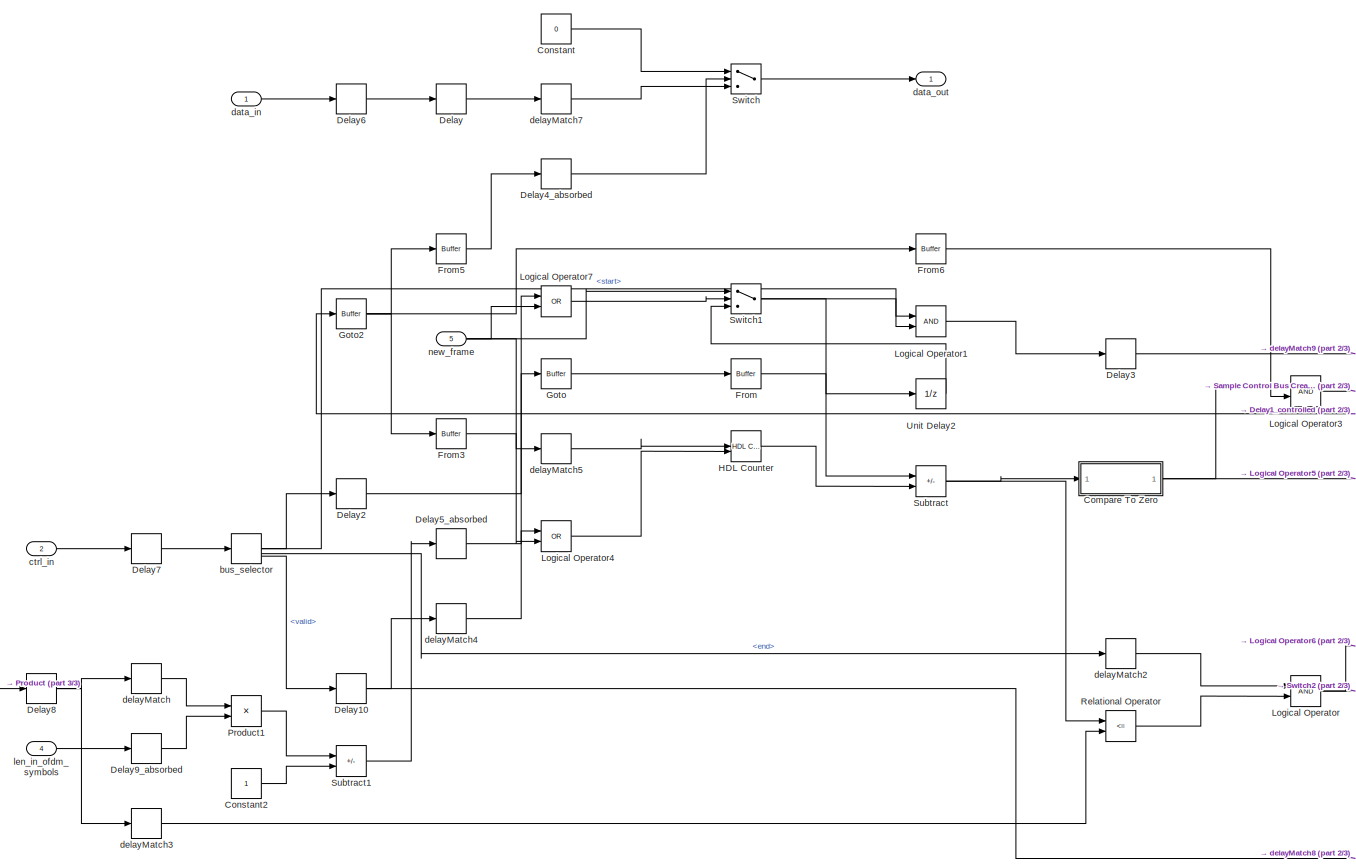
[diagram: payload_full/tone_mapping - part 1/3, center side, full height]
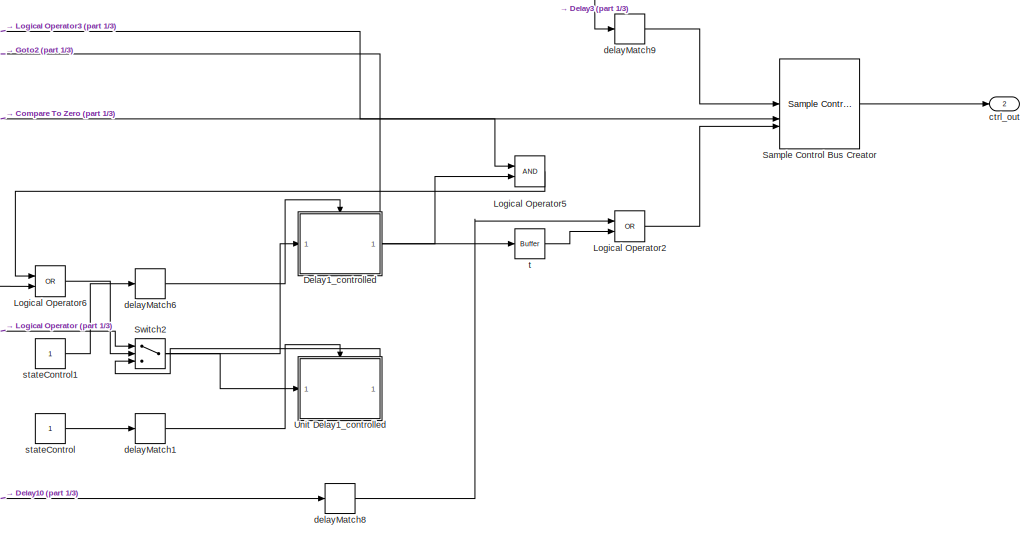
[diagram: payload_full/tone_mapping - part 2/3, bottom right region]
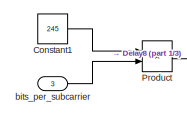
[diagram: payload_full/tone_mapping - part 3/3, bottom left region]
BLOCK [SubSystem] payload_full/tone_mapping
BLOCK [SubSystem] payload_full/tone_mapping/Compare To Zero
BLOCK [RelationalOperator] payload_full/tone_mapping/Compare To Zero/Compare
  Operator = ==
  OutDataTypeStr = boolean
BLOCK [Constant] payload_full/tone_mapping/Compare To Zero/Constant
  DisableCoverage = on
  OutDataTypeStr = fixdt(1, 43, 0)
  PreserveConstantTs = on
  SampleTime = -1
  Value = 0
BLOCK [Inport] payload_full/tone_mapping/Compare To Zero/u
  OutDataTypeStr = fixdt(1, 43, 0)
  SampleTime = 0.125
BLOCK [Outport] payload_full/tone_mapping/Compare To Zero/y
  SampleTime = 0.125
BLOCK [Constant] payload_full/tone_mapping/Constant
  OutDataTypeStr = boolean
  SampleTime = 0.125
  Value = 0
BLOCK [Constant] payload_full/tone_mapping/Constant1
  OutDataTypeStr = uint8
  SampleTime = 0.125
  Value = 245
BLOCK [Constant] payload_full/tone_mapping/Constant2
  OutDataTypeStr = fixdt(0, 41, 0)
  SampleTime = 0.125
BLOCK [Delay] payload_full/tone_mapping/Delay
  DelayLength = double(1)
  InitialCondition = 0
  InputPortMap = u0
  SampleTime = 0.125
BLOCK [Delay] payload_full/tone_mapping/Delay10
  DelayLength = double(1)
  InitialCondition = 0
  InputPortMap = u0
  SampleTime = 0.125
BLOCK [SubSystem] payload_full/tone_mapping/Delay1_controlled
BLOCK [Delay] payload_full/tone_mapping/Delay1_controlled/Delay1
  DelayLength = double(1)
  InitialCondition = 0
  InputPortMap = u0
  SampleTime = 0.125
BLOCK [Inport] payload_full/tone_mapping/Delay1_controlled/in0
  OutDataTypeStr = boolean
  SampleTime = 0.125
BLOCK [Outport] payload_full/tone_mapping/Delay1_controlled/out0
  OutDataTypeStr = boolean
  SampleTime = 0.125
BLOCK [EnablePort] payload_full/tone_mapping/Delay1_controlled/stateControl
  OutDataTypeStr = boolean
BLOCK [Delay] payload_full/tone_mapping/Delay2
  DelayLength = double(1)
  InitialCondition = 0
  InputPortMap = u0
  SampleTime = 0.125
BLOCK [Delay] payload_full/tone_mapping/Delay3
  DelayLength = double(1)
  InitialCondition = 0
  InputPortMap = u0
  SampleTime = 0.125
BLOCK [Delay] payload_full/tone_mapping/Delay4_absorbed
  DelayLength = 0
  InputPortMap = u0
BLOCK [Delay] payload_full/tone_mapping/Delay5_absorbed
  DelayLength = 0
  InputPortMap = u0
BLOCK [Delay] payload_full/tone_mapping/Delay6
  DelayLength = double(1)
  InitialCondition = 0
  InputPortMap = u0
  SampleTime = 0.125
BLOCK [Delay] payload_full/tone_mapping/Delay7
  DelayLength = double(1)
  InputPortMap = u0
  SampleTime = 0.125
BLOCK [Delay] payload_full/tone_mapping/Delay8
  DelayLength = double(1)
  InitialCondition = 0
  InputPortMap = u0
  SampleTime = 0.125
BLOCK [Delay] payload_full/tone_mapping/Delay9_absorbed
  DelayLength = 0
  InputPortMap = u0
BLOCK [Reference] payload_full/tone_mapping/From  REF=hdlmdlgenlib/Buffer
  SourceBlock = hdlmdlgenlib/Buffer
  SourceType = Buffer/Wire
BLOCK [Reference] payload_full/tone_mapping/From3  REF=hdlmdlgenlib/Buffer
  SourceBlock = hdlmdlgenlib/Buffer
  SourceType = Buffer/Wire
BLOCK [Reference] payload_full/tone_mapping/From5  REF=hdlmdlgenlib/Buffer
  SourceBlock = hdlmdlgenlib/Buffer
  SourceType = Buffer/Wire
BLOCK [Reference] payload_full/tone_mapping/From6  REF=hdlmdlgenlib/Buffer
  SourceBlock = hdlmdlgenlib/Buffer
  SourceType = Buffer/Wire
BLOCK [Reference] payload_full/tone_mapping/Goto  REF=hdlmdlgenlib/Buffer
  SourceBlock = hdlmdlgenlib/Buffer
  SourceType = Buffer/Wire
BLOCK [Reference] payload_full/tone_mapping/Goto2  REF=hdlmdlgenlib/Buffer
  SourceBlock = hdlmdlgenlib/Buffer
  SourceType = Buffer/Wire
BLOCK [Reference] payload_full/tone_mapping/HDL Counter  REF=hdlsllib/Sources/HDL Counter
  SourceBlock = hdlsllib/Sources/HDL Counter
  SourceType = HDL Counter
BLOCK [Logic] payload_full/tone_mapping/Logical Operator
  AllPortsSameDT = off
  OutDataTypeStr = boolean
  SampleTime = 0.125
BLOCK [Logic] payload_full/tone_mapping/Logical Operator1
  AllPortsSameDT = off
  OutDataTypeStr = boolean
  SampleTime = 0.125
BLOCK [Logic] payload_full/tone_mapping/Logical Operator2
  AllPortsSameDT = off
  Operator = OR
  OutDataTypeStr = boolean
  SampleTime = 0.125
BLOCK [Logic] payload_full/tone_mapping/Logical Operator3
  AllPortsSameDT = off
  OutDataTypeStr = boolean
  SampleTime = 0.125
BLOCK [Logic] payload_full/tone_mapping/Logical Operator4
  AllPortsSameDT = off
  Operator = OR
  OutDataTypeStr = boolean
  SampleTime = 0.125
BLOCK [Logic] payload_full/tone_mapping/Logical Operator5
  AllPortsSameDT = off
  OutDataTypeStr = boolean
  SampleTime = 0.125
BLOCK [Logic] payload_full/tone_mapping/Logical Operator6
  AllPortsSameDT = off
  Operator = OR
  OutDataTypeStr = boolean
  SampleTime = 0.125
BLOCK [Logic] payload_full/tone_mapping/Logical Operator7
  AllPortsSameDT = off
  Operator = OR
  OutDataTypeStr = boolean
  SampleTime = 0.125
BLOCK [Product] payload_full/tone_mapping/Product
  Inputs = **
  OutDataTypeStr = fixdt(0, 12, 0)
  SampleTime = 0.125
BLOCK [Product] payload_full/tone_mapping/Product1
  Inputs = **
  OutDataTypeStr = fixdt(0, 41, 0)
  SampleTime = 0.125
BLOCK [RelationalOperator] payload_full/tone_mapping/Relational Operator
  InputSameDT = off
  Operator = <=
  OutDataTypeStr = boolean
  SampleTime = 0.125
BLOCK [Reference] payload_full/tone_mapping/Sample Control Bus Creator  REF=whdlutilities/Sample Control
Bus Creator
  SourceBlock = whdlutilities/Sample Control\nBus Creator
  SourceType = Sample Control Bus Creator
BLOCK [Sum] payload_full/tone_mapping/Subtract
  AccumDataTypeStr = fixdt(1, 43, 0)
  IconShape = rectangular
  Inputs = +-
  OutDataTypeStr = fixdt(1, 43, 0)
  SampleTime = 0.125
BLOCK [Sum] payload_full/tone_mapping/Subtract1
  AccumDataTypeStr = fixdt(1, 42, 0)
  IconShape = rectangular
  Inputs = +-
  OutDataTypeStr = fixdt(1, 42, 0)
  SampleTime = 0.125
BLOCK [Switch] payload_full/tone_mapping/Switch
  Criteria = u2 ~= 0
  InputSameDT = off
  OutDataTypeStr = boolean
  SampleTime = 0.125
  SaturateOnIntegerOverflow = off
  Threshold = double(0)
BLOCK [Switch] payload_full/tone_mapping/Switch1
  Criteria = u2 ~= 0
  InputSameDT = off
  OutDataTypeStr = boolean
  SampleTime = 0.125
  SaturateOnIntegerOverflow = off
  Threshold = double(0)
BLOCK [Switch] payload_full/tone_mapping/Switch2
  Criteria = u2 ~= 0
  InputSameDT = off
  OutDataTypeStr = boolean
  SampleTime = 0.125
  SaturateOnIntegerOverflow = off
  Threshold = double(0)
BLOCK [SubSystem] payload_full/tone_mapping/Unit Delay1_controlled
BLOCK [UnitDelay] payload_full/tone_mapping/Unit Delay1_controlled/Unit Delay1
  SampleTime = 0.125
BLOCK [Inport] payload_full/tone_mapping/Unit Delay1_controlled/in0
  OutDataTypeStr = boolean
  SampleTime = 0.125
BLOCK [Outport] payload_full/tone_mapping/Unit Delay1_controlled/out0
  OutDataTypeStr = boolean
  SampleTime = 0.125
BLOCK [EnablePort] payload_full/tone_mapping/Unit Delay1_controlled/stateControl
  OutDataTypeStr = boolean
BLOCK [UnitDelay] payload_full/tone_mapping/Unit Delay2
  SampleTime = 0.125
BLOCK [Inport] payload_full/tone_mapping/bits_per_subcarrier
  OutDataTypeStr = fixdt(0, 4, 0)
  Port = 3
  SampleTime = 0.125
BLOCK [BusSelector] payload_full/tone_mapping/bus_selector
  OutputSignals = start,end,valid
BLOCK [Inport] payload_full/tone_mapping/ctrl_in
  Port = 2
  SampleTime = 0.125
BLOCK [Outport] payload_full/tone_mapping/ctrl_out
  Port = 2
  SampleTime = 0.125
BLOCK [Inport] payload_full/tone_mapping/data_in
  OutDataTypeStr = boolean
  SampleTime = 0.125
BLOCK [Outport] payload_full/tone_mapping/data_out
  SampleTime = 0.125
BLOCK [Delay] payload_full/tone_mapping/delayMatch
  DelayLength = double(239)
  InitialCondition = 0
  InputPortMap = u0
  SampleTime = 0.125
BLOCK [Delay] payload_full/tone_mapping/delayMatch1
  DelayLength = double(238)
  InitialCondition = 0
  InputPortMap = u0
  SampleTime = 0.125
BLOCK [Delay] payload_full/tone_mapping/delayMatch2
  DelayLength = double(238)
  InitialCondition = 0
  InputPortMap = u0
  SampleTime = 0.125
BLOCK [Delay] payload_full/tone_mapping/delayMatch3
  DelayLength = double(238)
  InitialCondition = 0
  InputPortMap = u0
  SampleTime = 0.125
BLOCK [Delay] payload_full/tone_mapping/delayMatch4
  DelayLength = double(238)
  InitialCondition = 0
  InputPortMap = u0
  SampleTime = 0.125
BLOCK [Delay] payload_full/tone_mapping/delayMatch5
  DelayLength = double(238)
  InitialCondition = 0
  InputPortMap = u0
  SampleTime = 0.125
BLOCK [Delay] payload_full/tone_mapping/delayMatch6
  DelayLength = double(238)
  InitialCondition = 0
  InputPortMap = u0
  SampleTime = 0.125
BLOCK [Delay] payload_full/tone_mapping/delayMatch7
  DelayLength = double(237)
  InitialCondition = 0
  InputPortMap = u0
  SampleTime = 0.125
BLOCK [Delay] payload_full/tone_mapping/delayMatch8
  DelayLength = double(238)
  InitialCondition = 0
  InputPortMap = u0
  SampleTime = 0.125
BLOCK [Delay] payload_full/tone_mapping/delayMatch9
  DelayLength = double(238)
  InitialCondition = 0
  InputPortMap = u0
  SampleTime = 0.125
BLOCK [Inport] payload_full/tone_mapping/len_in_ofdm_symbols
  OutDataTypeStr = fixdt(0, 29, 0)
  Port = 4
  SampleTime = 0.125
BLOCK [Inport] payload_full/tone_mapping/new_frame
  OutDataTypeStr = boolean
  Port = 5
  SampleTime = 0.125
BLOCK [Constant] payload_full/tone_mapping/stateControl
  OutDataTypeStr = boolean
  SampleTime = 0.125
BLOCK [Constant] payload_full/tone_mapping/stateControl1
  OutDataTypeStr = boolean
  SampleTime = 0.125
BLOCK [Reference] payload_full/tone_mapping/t  REF=hdlmdlgenlib/Buffer
  SourceBlock = hdlmdlgenlib/Buffer
  SourceType = Buffer/Wire
BLOCK [Inport] payload_full/valid_in
  OutDataTypeStr = boolean
  Port = 2
  SampleTime = 1
BLOCK [SubSystem] payload_full/valid_to_ctrl
BLOCK [Delay] payload_full/valid_to_ctrl/Delay1
  DelayLength = 1
  InitialCondition = 0
  InputPortMap = u0
  UseCircularBuffer = on
  UserDataPersistent = on
BLOCK [Delay] payload_full/valid_to_ctrl/Delay2
  DelayLength = 1
  InitialCondition = 0
  InputPortMap = u0
  UseCircularBuffer = on
  UserDataPersistent = on
BLOCK [Logic] payload_full/valid_to_ctrl/Logical Operator
  AllPortsSameDT = off
  IconShape = distinctive
  OutDataTypeStr = boolean
BLOCK [Logic] payload_full/valid_to_ctrl/Logical Operator1
  AllPortsSameDT = off
  IconShape = distinctive
  Operator = NOT
  OutDataTypeStr = boolean
BLOCK [Logic] payload_full/valid_to_ctrl/Logical Operator2
  AllPortsSameDT = off
  IconShape = distinctive
  OutDataTypeStr = boolean
BLOCK [Logic] payload_full/valid_to_ctrl/Logical Operator3
  AllPortsSameDT = off
  IconShape = distinctive
  Operator = NOT
  OutDataTypeStr = boolean
BLOCK [Reference] payload_full/valid_to_ctrl/Sample Control Bus Creator  REF=whdlutilities/Sample Control
Bus Creator
  SourceBlock = whdlutilities/Sample Control\nBus Creator
  SourceType = Sample Control Bus Creator
BLOCK [Outport] payload_full/valid_to_ctrl/ctrlOut
  SampleTime = 0.125
BLOCK [Inport] payload_full/valid_to_ctrl/validIn
  OutDataTypeStr = boolean
  SampleTime = 0.125
BLOCK [Reference] payload_full_vs  REF=vivadosimlib/HDL Cosimulation
  SourceBlock = vivadosimlib/HDL Cosimulation
  SourceType = Simulink and Vivado Simulator Cosimulation
  UserDataPersistent = on
ANNOTATION Data and Valid Selector: This subsystem is active only when the input ready signal is active. The subsystem selects the Input Valid value and outputs the valid signal. The subsystem also selects the payload data from an LUT based on the Input Valid signal and outputs it as data signal.
ANNOTATION payload_full: Note: careful when adding delays to signals "ready, valid or data" outside this block
ANNOTATION payload_full/batid_to_bits_per_subcarrier: De momento, el valor de BATID va a coincidir con el valor de la cantidad de bits por subcarrier.
ANNOTATION payload_full/batid_to_bits_per_subcarrier: Remember that "bat_id" is LSB first.
ANNOTATION payload_full/next_frame_to_ready: Given a next frame rising edge, this subsystem will generate a "ready" signal for the duration of "payloadWordsPerBlock0" clock cycles
ANNOTATION payload_full/psdu_size_to_payload_len: Repetition not supported
LINE Compare/Assert_bits_per_subcarrier/Compare To Zero:1 -> Compare/Assert_bits_per_subcarrier/compare: bits_per_subcarrier:3
NET Compare/Assert_bits_per_subcarrier/Relational Operator:1 -> Compare/Assert_bits_per_subcarrier/AssertEq:1, Compare/Assert_bits_per_subcarrier/Compare To Zero:1
NET Compare/Assert_bits_per_subcarrier/cosim:1 -> Compare/Assert_bits_per_subcarrier/Relational Operator:1, Compare/Assert_bits_per_subcarrier/compare: bits_per_subcarrier:1
NET Compare/Assert_bits_per_subcarrier/dut:1 -> Compare/Assert_bits_per_subcarrier/Relational Operator:2, Compare/Assert_bits_per_subcarrier/compare: bits_per_subcarrier:2
LINE Compare/Assert_ctrl_out_end/Compare To Zero:1 -> Compare/Assert_ctrl_out_end/compare: ctrl_out:3
NET Compare/Assert_ctrl_out_end/Relational Operator:1 -> Compare/Assert_ctrl_out_end/AssertEq:1, Compare/Assert_ctrl_out_end/Compare To Zero:1
NET Compare/Assert_ctrl_out_end/cosim:1 -> Compare/Assert_ctrl_out_end/Relational Operator:1, Compare/Assert_ctrl_out_end/compare: ctrl_out:1
NET Compare/Assert_ctrl_out_end/dut:1 -> Compare/Assert_ctrl_out_end/Relational Operator:2, Compare/Assert_ctrl_out_end/compare: ctrl_out:2
LINE Compare/Assert_ctrl_out_start/Compare To Zero:1 -> Compare/Assert_ctrl_out_start/compare: ctrl_out:3
NET Compare/Assert_ctrl_out_start/Relational Operator:1 -> Compare/Assert_ctrl_out_start/AssertEq:1, Compare/Assert_ctrl_out_start/Compare To Zero:1
NET Compare/Assert_ctrl_out_start/cosim:1 -> Compare/Assert_ctrl_out_start/Relational Operator:1, Compare/Assert_ctrl_out_start/compare: ctrl_out:1
NET Compare/Assert_ctrl_out_start/dut:1 -> Compare/Assert_ctrl_out_start/Relational Operator:2, Compare/Assert_ctrl_out_start/compare: ctrl_out:2
LINE Compare/Assert_ctrl_out_valid/Compare To Zero:1 -> Compare/Assert_ctrl_out_valid/compare: ctrl_out:3
NET Compare/Assert_ctrl_out_valid/Relational Operator:1 -> Compare/Assert_ctrl_out_valid/AssertEq:1, Compare/Assert_ctrl_out_valid/Compare To Zero:1
NET Compare/Assert_ctrl_out_valid/cosim:1 -> Compare/Assert_ctrl_out_valid/Relational Operator:1, Compare/Assert_ctrl_out_valid/compare: ctrl_out:1
NET Compare/Assert_ctrl_out_valid/dut:1 -> Compare/Assert_ctrl_out_valid/Relational Operator:2, Compare/Assert_ctrl_out_valid/compare: ctrl_out:2
LINE Compare/Assert_len_in_ofdm_symbols/Compare To Zero:1 -> Compare/Assert_len_in_ofdm_symbols/compare: len_in_ofdm_symbols:3
NET Compare/Assert_len_in_ofdm_symbols/Relational Operator:1 -> Compare/Assert_len_in_ofdm_symbols/AssertEq:1, Compare/Assert_len_in_ofdm_symbols/Compare To Zero:1
NET Compare/Assert_len_in_ofdm_symbols/cosim:1 -> Compare/Assert_len_in_ofdm_symbols/Relational Operator:1, Compare/Assert_len_in_ofdm_symbols/compare: len_in_ofdm_symbols:1
NET Compare/Assert_len_in_ofdm_symbols/dut:1 -> Compare/Assert_len_in_ofdm_symbols/Relational Operator:2, Compare/Assert_len_in_ofdm_symbols/compare: len_in_ofdm_symbols:2
LINE Compare/Assert_payload/Compare To Zero:1 -> Compare/Assert_payload/compare: payload:3
NET Compare/Assert_payload/Relational Operator:1 -> Compare/Assert_payload/AssertEq:1, Compare/Assert_payload/Compare To Zero:1
NET Compare/Assert_payload/cosim:1 -> Compare/Assert_payload/Relational Operator:1, Compare/Assert_payload/compare: payload:1
NET Compare/Assert_payload/dut:1 -> Compare/Assert_payload/Relational Operator:2, Compare/Assert_payload/compare: payload:2
LINE Compare/Assert_ready/Compare To Zero:1 -> Compare/Assert_ready/compare: ready:3
NET Compare/Assert_ready/Relational Operator:1 -> Compare/Assert_ready/AssertEq:1, Compare/Assert_ready/Compare To Zero:1
NET Compare/Assert_ready/cosim:1 -> Compare/Assert_ready/Relational Operator:1, Compare/Assert_ready/compare: ready:1
NET Compare/Assert_ready/dut:1 -> Compare/Assert_ready/Relational Operator:2, Compare/Assert_ready/compare: ready:2
LINE Compare/BusSel:1 -> Compare/Assert_ctrl_out_start:2
LINE Compare/BusSel:2 -> Compare/Assert_ctrl_out_end:2
LINE Compare/BusSel:3 -> Compare/Assert_ctrl_out_valid:2
LINE Compare/from1:1 -> Compare/Assert_payload:2
LINE Compare/from2:1 -> Compare/BusSel:1
LINE Compare/from3:1 -> Compare/Assert_ready:2
LINE Compare/from4:1 -> Compare/Assert_len_in_ofdm_symbols:2
LINE Compare/from5:1 -> Compare/Assert_bits_per_subcarrier:2
LINE Compare/in1:1 -> Compare/Assert_payload:1
LINE Compare/in2:1 -> Compare/Assert_ctrl_out_start:1
LINE Compare/in3:1 -> Compare/Assert_ctrl_out_end:1
LINE Compare/in4:1 -> Compare/Assert_ctrl_out_valid:1
LINE Compare/in5:1 -> Compare/Assert_ready:1
LINE Compare/in6:1 -> Compare/Assert_len_in_ofdm_symbols:1
LINE Compare/in7:1 -> Compare/Assert_bits_per_subcarrier:1
LINE Constant1:1 -> Delay3:1
LINE Constant2:1 -> Delay2:1
LINE Constant3:1 -> Delay4:1
LINE Constant4:1 -> Delay6:1
LINE Constant5:1 -> Delay5:1
LINE Constant:1 -> Delay1:1
LINE Data Type Conversion1:1 -> ToCosimSrc:2
LINE Data Type Conversion2:1 -> ToCosimSrc:3
LINE Data Type Conversion3:1 -> ToCosimSrc:4
LINE Data Type Conversion4:1 -> ToCosimSrc:5
LINE Data Type Conversion5:1 -> ToCosimSrc:6
LINE Data Type Conversion6:1 -> ToCosimSrc:7
LINE Data Type Conversion7:1 -> ToCosimSrc:8
LINE Data Type Conversion8:1 -> ToCosimSrc:9
LINE Data Type Conversion9:1 -> ToCosimSrc:10
LINE Data Type Conversion:1 -> ToCosimSrc:1
LINE Data and Valid Selector/Direct Lookup Table (n-D):1 -> Data and Valid Selector/data:1
LINE Data and Valid Selector/HDL Counter:1 -> Data and Valid Selector/Direct Lookup Table (n-D):1
LINE Data and Valid Selector/HDL Counter:2 -> Data and Valid Selector/last:1
NET Data and Valid Selector/Input Valid:1 -> Data and Valid Selector/HDL Counter:1, Data and Valid Selector/valid:1
LINE Data and Valid Selector:1 -> Data Type Conversion:1
LINE Data and Valid Selector:2 -> Data Type Conversion1:1
LINE Data and Valid Selector:3 -> Data Type Conversion2:1
LINE Delay1:1 -> Data Type Conversion6:1
LINE Delay2:1 -> Data Type Conversion5:1
LINE Delay3:1 -> Data Type Conversion4:1
LINE Delay4:1 -> Data Type Conversion9:1
LINE Delay5:1 -> Data Type Conversion8:1
LINE Delay6:1 -> Data Type Conversion7:1
LINE Delay:1 -> Data Type Conversion3:1
LINE FromCosimSrc/from10:1 -> FromCosimSrc/out10:1
LINE FromCosimSrc/from1:1 -> FromCosimSrc/out1:1
LINE FromCosimSrc/from2:1 -> FromCosimSrc/out2:1
LINE FromCosimSrc/from3:1 -> FromCosimSrc/out3:1
LINE FromCosimSrc/from4:1 -> FromCosimSrc/out4:1
LINE FromCosimSrc/from5:1 -> FromCosimSrc/out5:1
LINE FromCosimSrc/from6:1 -> FromCosimSrc/out6:1
LINE FromCosimSrc/from7:1 -> FromCosimSrc/out7:1
LINE FromCosimSrc/from8:1 -> FromCosimSrc/out8:1
LINE FromCosimSrc/from9:1 -> FromCosimSrc/out9:1
LINE FromCosimSrc:1 -> payload_full_vs:1
LINE FromCosimSrc:10 -> payload_full_vs:10
LINE FromCosimSrc:2 -> payload_full_vs:2
LINE FromCosimSrc:3 -> payload_full_vs:3
LINE FromCosimSrc:4 -> payload_full_vs:4
LINE FromCosimSrc:5 -> payload_full_vs:5
LINE FromCosimSrc:6 -> payload_full_vs:6
LINE FromCosimSrc:7 -> payload_full_vs:7
LINE FromCosimSrc:8 -> payload_full_vs:8
LINE FromCosimSrc:9 -> payload_full_vs:9
LINE New Frame:1 -> Delay:1
LINE Sample Control Bus Selector:1 -> To Workspace1:1
LINE Sample Control Bus Selector:2 -> To Workspace2:1
LINE Sample Control Bus Selector:3 -> To Workspace3:1
NET ToCosimSink/in1:1 -> ToCosimSink/goto1:1, ToCosimSink/out1:1
NET ToCosimSink/in2:1 -> ToCosimSink/goto2:1, ToCosimSink/out2:1
NET ToCosimSink/in3:1 -> ToCosimSink/goto3:1, ToCosimSink/out3:1
NET ToCosimSink/in4:1 -> ToCosimSink/goto4:1, ToCosimSink/out4:1
NET ToCosimSink/in5:1 -> ToCosimSink/goto5:1, ToCosimSink/out5:1
LINE ToCosimSink:1 -> To Workspace:1
LINE ToCosimSink:2 -> Sample Control Bus Selector:1
LINE ToCosimSink:3 -> Data and Valid Selector:enable
LINE ToCosimSink:4 -> Terminator:1
LINE ToCosimSink:5 -> Terminator1:1
NET ToCosimSrc/in10:1 -> ToCosimSrc/goto10:1, ToCosimSrc/out10:1
NET ToCosimSrc/in1:1 -> ToCosimSrc/goto1:1, ToCosimSrc/out1:1
NET ToCosimSrc/in2:1 -> ToCosimSrc/goto2:1, ToCosimSrc/out2:1
NET ToCosimSrc/in3:1 -> ToCosimSrc/goto3:1, ToCosimSrc/out3:1
NET ToCosimSrc/in4:1 -> ToCosimSrc/goto4:1, ToCosimSrc/out4:1
NET ToCosimSrc/in5:1 -> ToCosimSrc/goto5:1, ToCosimSrc/out5:1
NET ToCosimSrc/in6:1 -> ToCosimSrc/goto6:1, ToCosimSrc/out6:1
NET ToCosimSrc/in7:1 -> ToCosimSrc/goto7:1, ToCosimSrc/out7:1
NET ToCosimSrc/in8:1 -> ToCosimSrc/goto8:1, ToCosimSrc/out8:1
NET ToCosimSrc/in9:1 -> ToCosimSrc/goto9:1, ToCosimSrc/out9:1
LINE ToCosimSrc:1 -> payload_full:1
LINE ToCosimSrc:10 -> payload_full:10
LINE ToCosimSrc:2 -> payload_full:2
LINE ToCosimSrc:3 -> payload_full:3
LINE ToCosimSrc:4 -> payload_full:4
LINE ToCosimSrc:5 -> payload_full:5
LINE ToCosimSrc:6 -> payload_full:6
LINE ToCosimSrc:7 -> payload_full:7
LINE ToCosimSrc:8 -> payload_full:8
LINE ToCosimSrc:9 -> payload_full:9
LINE payload_full/Delay1:1 -> payload_full/Rate Transition:1
LINE payload_full/Delay2:1 -> payload_full/Logical Operator:1
LINE payload_full/Delay3:1 -> payload_full/Logical Operator:2
NET payload_full/Delay4:1 -> payload_full/slice1:1, payload_full/slice2:1, payload_full/slice3:1, payload_full/slice4:1, payload_full/slice5:1, payload_full/slice6:1, payload_full/slice7:1, payload_full/slice:1
LINE payload_full/Delay:1 -> payload_full/p_scrambler:1
LINE payload_full/From:1 -> payload_full/tone_mapping:5
LINE payload_full/Goto:1 -> payload_full/From:1
LINE payload_full/Logical Operator1:1 -> payload_full/next_frame_to_ready:1
LINE payload_full/Logical Operator5:1 -> payload_full/Switch1:2
LINE payload_full/Logical Operator:1 -> payload_full/Serializer1D:2
LINE payload_full/Rate Transition1:1 -> payload_full/p_scrambler:3
NET payload_full/Rate Transition4:1 -> payload_full/delayMatch3:1, payload_full/tone_mapping:3
NET payload_full/Rate Transition5:1 -> payload_full/len_in_ofdm_symbols:1, payload_full/tone_mapping:4
LINE payload_full/Rate Transition6:1 -> payload_full/Goto:1
LINE payload_full/Rate Transition:1 -> payload_full/Logical Operator1:2
LINE payload_full/Serializer1D:1 -> payload_full/Delay:1
LINE payload_full/Serializer1D:2 -> payload_full/valid_to_ctrl:1
NET payload_full/Switch1:1 -> payload_full/Logical Operator1:1, payload_full/Unit Delay1:1
LINE payload_full/Unit Delay1:1 -> payload_full/Switch1:3
LINE payload_full/bat_id:1 -> payload_full/batid_to_bits_per_subcarrier:1
LINE payload_full/batid_to_bits_per_subcarrier/Bit Concat:1 -> payload_full/batid_to_bits_per_subcarrier/bits_per_subcarrier:1
LINE payload_full/batid_to_bits_per_subcarrier/From1:1 -> payload_full/batid_to_bits_per_subcarrier/Bit Concat:3
LINE payload_full/batid_to_bits_per_subcarrier/From2:1 -> payload_full/batid_to_bits_per_subcarrier/Bit Concat:2
LINE payload_full/batid_to_bits_per_subcarrier/From3:1 -> payload_full/batid_to_bits_per_subcarrier/Bit Concat:1
LINE payload_full/batid_to_bits_per_subcarrier/From:1 -> payload_full/batid_to_bits_per_subcarrier/Bit Concat:4
LINE payload_full/batid_to_bits_per_subcarrier/Goto1:1 -> payload_full/batid_to_bits_per_subcarrier/From3:1
LINE payload_full/batid_to_bits_per_subcarrier/Goto2:1 -> payload_full/batid_to_bits_per_subcarrier/From2:1
LINE payload_full/batid_to_bits_per_subcarrier/Goto3:1 -> payload_full/batid_to_bits_per_subcarrier/From1:1
LINE payload_full/batid_to_bits_per_subcarrier/Goto4:1 -> payload_full/batid_to_bits_per_subcarrier/From:1
LINE payload_full/batid_to_bits_per_subcarrier/bat_id:1 -> payload_full/batid_to_bits_per_subcarrier/t:1
LINE payload_full/batid_to_bits_per_subcarrier/t:1 -> payload_full/batid_to_bits_per_subcarrier/Goto4:1
LINE payload_full/batid_to_bits_per_subcarrier/t:2 -> payload_full/batid_to_bits_per_subcarrier/Goto3:1
LINE payload_full/batid_to_bits_per_subcarrier/t:3 -> payload_full/batid_to_bits_per_subcarrier/Goto2:1
LINE payload_full/batid_to_bits_per_subcarrier/t:4 -> payload_full/batid_to_bits_per_subcarrier/Goto1:1
LINE payload_full/batid_to_bits_per_subcarrier/t:5 -> payload_full/batid_to_bits_per_subcarrier/bat_id_4_term4:1
NET payload_full/batid_to_bits_per_subcarrier:1 -> payload_full/Rate Transition4:1, payload_full/psdu_size_to_payload_len:1
LINE payload_full/block_size:1 -> payload_full/block_size_term6:1
LINE payload_full/concatenate:1 -> payload_full/Serializer1D:1
LINE payload_full/data_in:1 -> payload_full/Delay4:1
LINE payload_full/delayMatch1:1 -> payload_full/ctrl_out:1
LINE payload_full/delayMatch2:1 -> payload_full/ready:1
LINE payload_full/delayMatch3:1 -> payload_full/bits_per_subcarrier:1
LINE payload_full/delayMatch:1 -> payload_full/payload:1
LINE payload_full/fec_rate:1 -> payload_full/fec_rate_term5:1
LINE payload_full/fec_rate_to_number/Constant:1 -> payload_full/fec_rate_to_number/Out1:1
LINE payload_full/fec_rate_to_number:1 -> payload_full/psdu_size_to_payload_len:3
LINE payload_full/last_frame:1 -> payload_full/Logical Operator5:2
NET payload_full/new_frame:1 -> payload_full/Logical Operator5:1, payload_full/Rate Transition6:1, payload_full/Switch1:1
LINE payload_full/next_frame_to_ready/HDL Counter:1 -> payload_full/next_frame_to_ready/HDL Counter_term0:1
NET payload_full/next_frame_to_ready/HDL Counter:2 -> payload_full/next_frame_to_ready/Logical Operator2:1, payload_full/next_frame_to_ready/Logical Operator3:2
LINE payload_full/next_frame_to_ready/Logical Operator2:1 -> payload_full/next_frame_to_ready/Unit Delay Enabled Synchronous:1
LINE payload_full/next_frame_to_ready/Logical Operator3:1 -> payload_full/next_frame_to_ready/Unit Delay Enabled Synchronous:2
NET payload_full/next_frame_to_ready/Unit Delay Enabled Synchronous:1 -> payload_full/next_frame_to_ready/HDL Counter:1, payload_full/next_frame_to_ready/ready:1
LINE payload_full/next_frame_to_ready/next_frame:1 -> payload_full/next_frame_to_ready/rising_edge_detector:1
LINE payload_full/next_frame_to_ready/rising_edge_detector/Delay2:1 -> payload_full/next_frame_to_ready/rising_edge_detector/Logical Operator2:1
NET payload_full/next_frame_to_ready/rising_edge_detector/In:1 -> payload_full/next_frame_to_ready/rising_edge_detector/Delay2:1, payload_full/next_frame_to_ready/rising_edge_detector/Logical Operator1:1
LINE payload_full/next_frame_to_ready/rising_edge_detector/Logical Operator1:1 -> payload_full/next_frame_to_ready/rising_edge_detector/Out:1
LINE payload_full/next_frame_to_ready/rising_edge_detector/Logical Operator2:1 -> payload_full/next_frame_to_ready/rising_edge_detector/Logical Operator1:2
LINE payload_full/next_frame_to_ready/rising_edge_detector:1 -> payload_full/next_frame_to_ready/Logical Operator3:1
NET payload_full/next_frame_to_ready:1 -> payload_full/Delay2:1, payload_full/delayMatch2:1
LINE payload_full/p_scrambler/C10:1 -> payload_full/p_scrambler/C11:1
LINE payload_full/p_scrambler/C11:1 -> payload_full/p_scrambler/C12:1
LINE payload_full/p_scrambler/C12:1 -> payload_full/p_scrambler/C13:1
LINE payload_full/p_scrambler/C13:1 -> payload_full/p_scrambler/C14:1
LINE payload_full/p_scrambler/C14:1 -> payload_full/p_scrambler/C15:1
LINE payload_full/p_scrambler/C15:1 -> payload_full/p_scrambler/C16:1
LINE payload_full/p_scrambler/C16:1 -> payload_full/p_scrambler/C17:1
LINE payload_full/p_scrambler/C17:1 -> payload_full/p_scrambler/C18:1
NET payload_full/p_scrambler/C18:1 -> payload_full/p_scrambler/C19:1, payload_full/p_scrambler/Logical Operator1:2
LINE payload_full/p_scrambler/C19:1 -> payload_full/p_scrambler/C20:1
LINE payload_full/p_scrambler/C20:1 -> payload_full/p_scrambler/C21:1
LINE payload_full/p_scrambler/C21:1 -> payload_full/p_scrambler/C22:1
LINE payload_full/p_scrambler/C22:1 -> payload_full/p_scrambler/C23:1
LINE payload_full/p_scrambler/C23:1 -> payload_full/p_scrambler/Logical Operator1:1
LINE payload_full/p_scrambler/C5:1 -> payload_full/p_scrambler/C6:1
LINE payload_full/p_scrambler/C6:1 -> payload_full/p_scrambler/C7:1
LINE payload_full/p_scrambler/C7:1 -> payload_full/p_scrambler/C8:1
LINE payload_full/p_scrambler/C8:1 -> payload_full/p_scrambler/C9:1
LINE payload_full/p_scrambler/C9:1 -> payload_full/p_scrambler/C10:1
LINE payload_full/p_scrambler/Delay1:1 -> payload_full/p_scrambler/Logical Operator:1
LINE payload_full/p_scrambler/Delay3:1 -> payload_full/p_scrambler/Sample Control Bus Creator:1
LINE payload_full/p_scrambler/Delay4:1 -> payload_full/p_scrambler/Sample Control Bus Creator:2
LINE payload_full/p_scrambler/Delay5:1 -> payload_full/p_scrambler/Sample Control Bus Creator:3
LINE payload_full/p_scrambler/From10:1 -> payload_full/p_scrambler/C6:2
LINE payload_full/p_scrambler/From11:1 -> payload_full/p_scrambler/C6:3
LINE payload_full/p_scrambler/From12:1 -> payload_full/p_scrambler/C7:2
LINE payload_full/p_scrambler/From13:1 -> payload_full/p_scrambler/C7:3
LINE payload_full/p_scrambler/From14:1 -> payload_full/p_scrambler/C8:2
LINE payload_full/p_scrambler/From15:1 -> payload_full/p_scrambler/C8:3
LINE payload_full/p_scrambler/From16:1 -> payload_full/p_scrambler/C9:2
LINE payload_full/p_scrambler/From17:1 -> payload_full/p_scrambler/C9:3
LINE payload_full/p_scrambler/From18:1 -> payload_full/p_scrambler/C14:2
LINE payload_full/p_scrambler/From19:1 -> payload_full/p_scrambler/C14:3
LINE payload_full/p_scrambler/From1:1 -> payload_full/p_scrambler/Switch:2
LINE payload_full/p_scrambler/From20:1 -> payload_full/p_scrambler/C15:2
LINE payload_full/p_scrambler/From21:1 -> payload_full/p_scrambler/C15:3
LINE payload_full/p_scrambler/From22:1 -> payload_full/p_scrambler/C16:2
LINE payload_full/p_scrambler/From23:1 -> payload_full/p_scrambler/C16:3
LINE payload_full/p_scrambler/From24:1 -> payload_full/p_scrambler/C10:2
LINE payload_full/p_scrambler/From25:1 -> payload_full/p_scrambler/C10:3
LINE payload_full/p_scrambler/From26:1 -> payload_full/p_scrambler/C11:2
LINE payload_full/p_scrambler/From27:1 -> payload_full/p_scrambler/C11:3
LINE payload_full/p_scrambler/From28:1 -> payload_full/p_scrambler/C12:2
LINE payload_full/p_scrambler/From29:1 -> payload_full/p_scrambler/C12:3
LINE payload_full/p_scrambler/From2:1 -> payload_full/p_scrambler/Unit Delay Enabled Synchronous:2
LINE payload_full/p_scrambler/From30:1 -> payload_full/p_scrambler/C13:2
LINE payload_full/p_scrambler/From31:1 -> payload_full/p_scrambler/C13:3
LINE payload_full/p_scrambler/From32:1 -> payload_full/p_scrambler/C21:2
LINE payload_full/p_scrambler/From33:1 -> payload_full/p_scrambler/C21:3
LINE payload_full/p_scrambler/From34:1 -> payload_full/p_scrambler/C22:2
LINE payload_full/p_scrambler/From35:1 -> payload_full/p_scrambler/C22:3
LINE payload_full/p_scrambler/From36:1 -> payload_full/p_scrambler/C23:2
LINE payload_full/p_scrambler/From37:1 -> payload_full/p_scrambler/C23:3
LINE payload_full/p_scrambler/From38:1 -> payload_full/p_scrambler/C17:2
LINE payload_full/p_scrambler/From39:1 -> payload_full/p_scrambler/C17:3
LINE payload_full/p_scrambler/From3:1 -> payload_full/p_scrambler/Switch1:2
LINE payload_full/p_scrambler/From40:1 -> payload_full/p_scrambler/C18:2
LINE payload_full/p_scrambler/From41:1 -> payload_full/p_scrambler/C18:3
LINE payload_full/p_scrambler/From42:1 -> payload_full/p_scrambler/C19:2
LINE payload_full/p_scrambler/From43:1 -> payload_full/p_scrambler/C19:3
LINE payload_full/p_scrambler/From44:1 -> payload_full/p_scrambler/C20:2
LINE payload_full/p_scrambler/From45:1 -> payload_full/p_scrambler/C20:3
LINE payload_full/p_scrambler/From4:1 -> payload_full/p_scrambler/Unit Delay Enabled Synchronous1:2
LINE payload_full/p_scrambler/From5:1 -> payload_full/p_scrambler/Switch3:2
LINE payload_full/p_scrambler/From6:1 -> payload_full/p_scrambler/Unit Delay Enabled Synchronous2:2
LINE payload_full/p_scrambler/From7:1 -> payload_full/p_scrambler/Switch2:2
LINE payload_full/p_scrambler/From8:1 -> payload_full/p_scrambler/C5:2
LINE payload_full/p_scrambler/From9:1 -> payload_full/p_scrambler/C5:3
LINE payload_full/p_scrambler/From:1 -> payload_full/p_scrambler/Unit Delay Enabled Synchronous3:2
NET payload_full/p_scrambler/Goto2:1 -> payload_full/p_scrambler/From10:1, payload_full/p_scrambler/From12:1, payload_full/p_scrambler/From14:1, payload_full/p_scrambler/From16:1, payload_full/p_scrambler/From18:1, payload_full/p_scrambler/From20:1, payload_full/p_scrambler/From22:1, payload_full/p_scrambler/From24:1, payload_full/p_scrambler/From26:1, payload_full/p_scrambler/From28:1, payload_full/p_scrambler/From2:1, payload_full/p_scrambler/From30:1, payload_full/p_scrambler/From32:1, payload_full/p_scrambler/From34:1, payload_full/p_scrambler/From36:1, payload_full/p_scrambler/From38:1, payload_full/p_scrambler/From40:1, payload_full/p_scrambler/From42:1, payload_full/p_scrambler/From44:1, payload_full/p_scrambler/From4:1, payload_full/p_scrambler/From6:1, payload_full/p_scrambler/From8:1, payload_full/p_scrambler/From:1
NET payload_full/p_scrambler/Goto3:1 -> payload_full/p_scrambler/From11:1, payload_full/p_scrambler/From13:1, payload_full/p_scrambler/From15:1, payload_full/p_scrambler/From17:1, payload_full/p_scrambler/From19:1, payload_full/p_scrambler/From1:1, payload_full/p_scrambler/From21:1, payload_full/p_scrambler/From23:1, payload_full/p_scrambler/From25:1, payload_full/p_scrambler/From27:1, payload_full/p_scrambler/From29:1, payload_full/p_scrambler/From31:1, payload_full/p_scrambler/From33:1, payload_full/p_scrambler/From35:1, payload_full/p_scrambler/From37:1, payload_full/p_scrambler/From39:1, payload_full/p_scrambler/From3:1, payload_full/p_scrambler/From41:1, payload_full/p_scrambler/From43:1, payload_full/p_scrambler/From45:1, payload_full/p_scrambler/From5:1, payload_full/p_scrambler/From7:1, payload_full/p_scrambler/From9:1
NET payload_full/p_scrambler/Logical Operator1:1 -> payload_full/p_scrambler/Logical Operator:2, payload_full/p_scrambler/Switch:3
LINE payload_full/p_scrambler/Logical Operator:1 -> payload_full/p_scrambler/data_out:1
LINE payload_full/p_scrambler/SI:1 -> payload_full/p_scrambler/t:1
LINE payload_full/p_scrambler/Sample Control Bus Creator:1 -> payload_full/p_scrambler/ctrl_out:1
LINE payload_full/p_scrambler/Switch1:1 -> payload_full/p_scrambler/Unit Delay Enabled Synchronous:1
LINE payload_full/p_scrambler/Switch2:1 -> payload_full/p_scrambler/Unit Delay Enabled Synchronous1:1
LINE payload_full/p_scrambler/Switch3:1 -> payload_full/p_scrambler/Unit Delay Enabled Synchronous2:1
LINE payload_full/p_scrambler/Switch:1 -> payload_full/p_scrambler/Unit Delay Enabled Synchronous3:1
LINE payload_full/p_scrambler/Unit Delay Enabled Synchronous1:1 -> payload_full/p_scrambler/Switch3:3
LINE payload_full/p_scrambler/Unit Delay Enabled Synchronous2:1 -> payload_full/p_scrambler/C5:1
LINE payload_full/p_scrambler/Unit Delay Enabled Synchronous3:1 -> payload_full/p_scrambler/Switch1:3
LINE payload_full/p_scrambler/Unit Delay Enabled Synchronous:1 -> payload_full/p_scrambler/Switch2:3
NET payload_full/p_scrambler/bus_selector:1 -> payload_full/p_scrambler/Delay3:1, payload_full/p_scrambler/Goto3:1
LINE payload_full/p_scrambler/bus_selector:2 -> payload_full/p_scrambler/Delay4:1
NET payload_full/p_scrambler/bus_selector:3 -> payload_full/p_scrambler/Delay5:1, payload_full/p_scrambler/Goto2:1
LINE payload_full/p_scrambler/ctrl_in:1 -> payload_full/p_scrambler/bus_selector:1
LINE payload_full/p_scrambler/data_in:1 -> payload_full/p_scrambler/Delay1:1
LINE payload_full/p_scrambler/t:1 -> payload_full/p_scrambler/Switch:1
LINE payload_full/p_scrambler/t:2 -> payload_full/p_scrambler/Switch1:1
LINE payload_full/p_scrambler/t:3 -> payload_full/p_scrambler/Switch2:1
LINE payload_full/p_scrambler/t:4 -> payload_full/p_scrambler/Switch3:1
LINE payload_full/p_scrambler:1 -> payload_full/reduced_ldpc:1
LINE payload_full/p_scrambler:2 -> payload_full/reduced_ldpc:2
LINE payload_full/payload_rep/ctrl_in:1 -> payload_full/payload_rep/ctrl_out:1
LINE payload_full/payload_rep/data_in:1 -> payload_full/payload_rep/data_out:1
LINE payload_full/payload_rep:1 -> payload_full/tone_mapping:1
LINE payload_full/payload_rep:2 -> payload_full/tone_mapping:2
LINE payload_full/psdu_size:1 -> payload_full/psdu_size_to_payload_len:2
LINE payload_full/psdu_size_to_payload_len/Add:1 -> payload_full/psdu_size_to_payload_len/Delay2_absorbed:1
LINE payload_full/psdu_size_to_payload_len/Compare To Zero:1 -> payload_full/psdu_size_to_payload_len/Switch:2
LINE payload_full/psdu_size_to_payload_len/Constant1:1 -> payload_full/psdu_size_to_payload_len/Switch:1
LINE payload_full/psdu_size_to_payload_len/Constant2:1 -> payload_full/psdu_size_to_payload_len/Add:2
LINE payload_full/psdu_size_to_payload_len/Constant:1 -> payload_full/psdu_size_to_payload_len/Product:2
LINE payload_full/psdu_size_to_payload_len/Data Type Conversion:1 -> payload_full/psdu_size_to_payload_len/t:1
LINE payload_full/psdu_size_to_payload_len/Delay1:1 -> payload_full/psdu_size_to_payload_len/Divide:1
LINE payload_full/psdu_size_to_payload_len/Delay2_absorbed:1 -> payload_full/psdu_size_to_payload_len/payload_len_in_ofdm_symbols:1
LINE payload_full/psdu_size_to_payload_len/Delay3:1 -> payload_full/psdu_size_to_payload_len/Divide:2
LINE payload_full/psdu_size_to_payload_len/Delay4:1 -> payload_full/psdu_size_to_payload_len/multiply by 8:1
LINE payload_full/psdu_size_to_payload_len/Delay5_absorbed:1 -> payload_full/psdu_size_to_payload_len/Add:1
NET payload_full/psdu_size_to_payload_len/Delay:1 -> payload_full/psdu_size_to_payload_len/Compare To Zero:1, payload_full/psdu_size_to_payload_len/Switch:3
LINE payload_full/psdu_size_to_payload_len/Divide/Divide:1 -> payload_full/psdu_size_to_payload_len/Divide/Divide_pd1:1
LINE payload_full/psdu_size_to_payload_len/Divide/Divide_pd1:1 -> payload_full/psdu_size_to_payload_len/Divide/Out1:1
LINE payload_full/psdu_size_to_payload_len/Divide/In1:1 -> payload_full/psdu_size_to_payload_len/Divide/Divide:1
LINE payload_full/psdu_size_to_payload_len/Divide/In2:1 -> payload_full/psdu_size_to_payload_len/Divide/Divide:2
LINE payload_full/psdu_size_to_payload_len/Divide:1 -> payload_full/psdu_size_to_payload_len/Delay5_absorbed:1
LINE payload_full/psdu_size_to_payload_len/Product1:1 -> payload_full/psdu_size_to_payload_len/Delay4:1
LINE payload_full/psdu_size_to_payload_len/Product:1 -> payload_full/psdu_size_to_payload_len/Delay:1
LINE payload_full/psdu_size_to_payload_len/Switch:1 -> payload_full/psdu_size_to_payload_len/Delay3:1
LINE payload_full/psdu_size_to_payload_len/bits_per_subcarrier:1 -> payload_full/psdu_size_to_payload_len/Product:1
LINE payload_full/psdu_size_to_payload_len/concat:1 -> payload_full/psdu_size_to_payload_len/Product1:2
LINE payload_full/psdu_size_to_payload_len/fec_rate:1 -> payload_full/psdu_size_to_payload_len/Product1:1
LINE payload_full/psdu_size_to_payload_len/multiply by 8:1 -> payload_full/psdu_size_to_payload_len/Delay1:1
LINE payload_full/psdu_size_to_payload_len/psdu_size:1 -> payload_full/psdu_size_to_payload_len/Data Type Conversion:1
LINE payload_full/psdu_size_to_payload_len/t:1 -> payload_full/psdu_size_to_payload_len/concat:24
LINE payload_full/psdu_size_to_payload_len/t:10 -> payload_full/psdu_size_to_payload_len/concat:15
LINE payload_full/psdu_size_to_payload_len/t:11 -> payload_full/psdu_size_to_payload_len/concat:14
LINE payload_full/psdu_size_to_payload_len/t:12 -> payload_full/psdu_size_to_payload_len/concat:13
LINE payload_full/psdu_size_to_payload_len/t:13 -> payload_full/psdu_size_to_payload_len/concat:12
LINE payload_full/psdu_size_to_payload_len/t:14 -> payload_full/psdu_size_to_payload_len/concat:11
LINE payload_full/psdu_size_to_payload_len/t:15 -> payload_full/psdu_size_to_payload_len/concat:10
LINE payload_full/psdu_size_to_payload_len/t:16 -> payload_full/psdu_size_to_payload_len/concat:9
LINE payload_full/psdu_size_to_payload_len/t:17 -> payload_full/psdu_size_to_payload_len/concat:8
LINE payload_full/psdu_size_to_payload_len/t:18 -> payload_full/psdu_size_to_payload_len/concat:7
LINE payload_full/psdu_size_to_payload_len/t:19 -> payload_full/psdu_size_to_payload_len/concat:6
LINE payload_full/psdu_size_to_payload_len/t:2 -> payload_full/psdu_size_to_payload_len/concat:23
LINE payload_full/psdu_size_to_payload_len/t:20 -> payload_full/psdu_size_to_payload_len/concat:5
LINE payload_full/psdu_size_to_payload_len/t:21 -> payload_full/psdu_size_to_payload_len/concat:4
LINE payload_full/psdu_size_to_payload_len/t:22 -> payload_full/psdu_size_to_payload_len/concat:3
LINE payload_full/psdu_size_to_payload_len/t:23 -> payload_full/psdu_size_to_payload_len/concat:2
LINE payload_full/psdu_size_to_payload_len/t:24 -> payload_full/psdu_size_to_payload_len/concat:1
LINE payload_full/psdu_size_to_payload_len/t:3 -> payload_full/psdu_size_to_payload_len/concat:22
LINE payload_full/psdu_size_to_payload_len/t:4 -> payload_full/psdu_size_to_payload_len/concat:21
LINE payload_full/psdu_size_to_payload_len/t:5 -> payload_full/psdu_size_to_payload_len/concat:20
LINE payload_full/psdu_size_to_payload_len/t:6 -> payload_full/psdu_size_to_payload_len/concat:19
LINE payload_full/psdu_size_to_payload_len/t:7 -> payload_full/psdu_size_to_payload_len/concat:18
LINE payload_full/psdu_size_to_payload_len/t:8 -> payload_full/psdu_size_to_payload_len/concat:17
LINE payload_full/psdu_size_to_payload_len/t:9 -> payload_full/psdu_size_to_payload_len/concat:16
LINE payload_full/psdu_size_to_payload_len:1 -> payload_full/Rate Transition5:1
LINE payload_full/puncturer/ctrl_in:1 -> payload_full/puncturer/ctrl_out:1
LINE payload_full/puncturer/data_in:1 -> payload_full/puncturer/data_out:1
LINE payload_full/puncturer:1 -> payload_full/payload_rep:1
LINE payload_full/puncturer:2 -> payload_full/payload_rep:2
LINE payload_full/reduced_ldpc/Hc_12S-B80:1 -> payload_full/reduced_ldpc/data_out:1
LINE payload_full/reduced_ldpc/Hc_12S-B80:2 -> payload_full/reduced_ldpc/ctrl_out:1
LINE payload_full/reduced_ldpc/Hc_12S-B80:3 -> payload_full/reduced_ldpc/next_frame:1
LINE payload_full/reduced_ldpc/ctrl_in:1 -> payload_full/reduced_ldpc/Hc_12S-B80:2
LINE payload_full/reduced_ldpc/data_in:1 -> payload_full/reduced_ldpc/Hc_12S-B80:1
LINE payload_full/reduced_ldpc:1 -> payload_full/puncturer:1
LINE payload_full/reduced_ldpc:2 -> payload_full/puncturer:2
LINE payload_full/reduced_ldpc:3 -> payload_full/Delay1:1
LINE payload_full/rep_number:1 -> payload_full/rep_number_term9:1
LINE payload_full/scrambler_init:1 -> payload_full/Rate Transition1:1
LINE payload_full/slice1:1 -> payload_full/concatenate:2
LINE payload_full/slice2:1 -> payload_full/concatenate:3
LINE payload_full/slice3:1 -> payload_full/concatenate:4
LINE payload_full/slice4:1 -> payload_full/concatenate:5
LINE payload_full/slice5:1 -> payload_full/concatenate:6
LINE payload_full/slice6:1 -> payload_full/concatenate:7
LINE payload_full/slice7:1 -> payload_full/concatenate:8
LINE payload_full/slice:1 -> payload_full/concatenate:1
NET payload_full/tone_mapping/Compare To Zero:1 -> payload_full/tone_mapping/Logical Operator3:1, payload_full/tone_mapping/Logical Operator5:1
LINE payload_full/tone_mapping/Constant1:1 -> payload_full/tone_mapping/Product:1
LINE payload_full/tone_mapping/Constant2:1 -> payload_full/tone_mapping/Subtract1:2
LINE payload_full/tone_mapping/Constant:1 -> payload_full/tone_mapping/Switch:1
NET payload_full/tone_mapping/Delay10:1 -> payload_full/tone_mapping/delayMatch4:1, payload_full/tone_mapping/delayMatch8:1
LINE payload_full/tone_mapping/Delay1_controlled/Delay1:1 -> payload_full/tone_mapping/Delay1_controlled/out0:1
LINE payload_full/tone_mapping/Delay1_controlled/in0:1 -> payload_full/tone_mapping/Delay1_controlled/Delay1:1
NET payload_full/tone_mapping/Delay1_controlled:1 -> payload_full/tone_mapping/Goto2:1, payload_full/tone_mapping/Logical Operator5:2, payload_full/tone_mapping/t:1
LINE payload_full/tone_mapping/Delay2:1 -> payload_full/tone_mapping/Logical Operator7:1
LINE payload_full/tone_mapping/Delay3:1 -> payload_full/tone_mapping/delayMatch9:1
LINE payload_full/tone_mapping/Delay4_absorbed:1 -> payload_full/tone_mapping/Switch:2
LINE payload_full/tone_mapping/Delay5_absorbed:1 -> payload_full/tone_mapping/Goto:1
LINE payload_full/tone_mapping/Delay6:1 -> payload_full/tone_mapping/Delay:1
LINE payload_full/tone_mapping/Delay7:1 -> payload_full/tone_mapping/bus_selector:1
NET payload_full/tone_mapping/Delay8:1 -> payload_full/tone_mapping/delayMatch3:1, payload_full/tone_mapping/delayMatch:1
LINE payload_full/tone_mapping/Delay9_absorbed:1 -> payload_full/tone_mapping/Product1:2
LINE payload_full/tone_mapping/Delay:1 -> payload_full/tone_mapping/delayMatch7:1
LINE payload_full/tone_mapping/From3:1 -> payload_full/tone_mapping/Logical Operator4:2
LINE payload_full/tone_mapping/From5:1 -> payload_full/tone_mapping/Delay4_absorbed:1
LINE payload_full/tone_mapping/From6:1 -> payload_full/tone_mapping/Logical Operator3:2
LINE payload_full/tone_mapping/From:1 -> payload_full/tone_mapping/Subtract:1
NET payload_full/tone_mapping/Goto2:1 -> payload_full/tone_mapping/From3:1, payload_full/tone_mapping/From5:1, payload_full/tone_mapping/From6:1
LINE payload_full/tone_mapping/Goto:1 -> payload_full/tone_mapping/From:1
LINE payload_full/tone_mapping/HDL Counter:1 -> payload_full/tone_mapping/Subtract:2
LINE payload_full/tone_mapping/Logical Operator1:1 -> payload_full/tone_mapping/Delay3:1
LINE payload_full/tone_mapping/Logical Operator2:1 -> payload_full/tone_mapping/Sample Control Bus Creator:3
LINE payload_full/tone_mapping/Logical Operator3:1 -> payload_full/tone_mapping/Sample Control Bus Creator:2
LINE payload_full/tone_mapping/Logical Operator4:1 -> payload_full/tone_mapping/HDL Counter:2
LINE payload_full/tone_mapping/Logical Operator5:1 -> payload_full/tone_mapping/Logical Operator6:1
LINE payload_full/tone_mapping/Logical Operator6:1 -> payload_full/tone_mapping/Switch2:2
LINE payload_full/tone_mapping/Logical Operator7:1 -> payload_full/tone_mapping/Switch1:2
NET payload_full/tone_mapping/Logical Operator:1 -> payload_full/tone_mapping/Logical Operator6:2, payload_full/tone_mapping/Switch2:1
LINE payload_full/tone_mapping/Product1:1 -> payload_full/tone_mapping/Subtract1:1
LINE payload_full/tone_mapping/Product:1 -> payload_full/tone_mapping/Delay8:1
LINE payload_full/tone_mapping/Relational Operator:1 -> payload_full/tone_mapping/Logical Operator:2
LINE payload_full/tone_mapping/Sample Control Bus Creator:1 -> payload_full/tone_mapping/ctrl_out:1
LINE payload_full/tone_mapping/Subtract1:1 -> payload_full/tone_mapping/Delay5_absorbed:1
NET payload_full/tone_mapping/Subtract:1 -> payload_full/tone_mapping/Compare To Zero:1, payload_full/tone_mapping/Relational Operator:1
NET payload_full/tone_mapping/Switch1:1 -> payload_full/tone_mapping/Logical Operator1:1, payload_full/tone_mapping/Unit Delay2:1
NET payload_full/tone_mapping/Switch2:1 -> payload_full/tone_mapping/Delay1_controlled:1, payload_full/tone_mapping/Unit Delay1_controlled:1
LINE payload_full/tone_mapping/Switch:1 -> payload_full/tone_mapping/data_out:1
LINE payload_full/tone_mapping/Unit Delay1_controlled/Unit Delay1:1 -> payload_full/tone_mapping/Unit Delay1_controlled/out0:1
LINE payload_full/tone_mapping/Unit Delay1_controlled/in0:1 -> payload_full/tone_mapping/Unit Delay1_controlled/Unit Delay1:1
LINE payload_full/tone_mapping/Unit Delay1_controlled:1 -> payload_full/tone_mapping/Switch2:3
LINE payload_full/tone_mapping/Unit Delay2:1 -> payload_full/tone_mapping/Switch1:3
LINE payload_full/tone_mapping/bits_per_subcarrier:1 -> payload_full/tone_mapping/Product:2
NET payload_full/tone_mapping/bus_selector:1 -> payload_full/tone_mapping/Delay2:1, payload_full/tone_mapping/Logical Operator1:2
LINE payload_full/tone_mapping/bus_selector:2 -> payload_full/tone_mapping/delayMatch2:1
LINE payload_full/tone_mapping/bus_selector:3 -> payload_full/tone_mapping/Delay10:1
LINE payload_full/tone_mapping/ctrl_in:1 -> payload_full/tone_mapping/Delay7:1
LINE payload_full/tone_mapping/data_in:1 -> payload_full/tone_mapping/Delay6:1
LINE payload_full/tone_mapping/delayMatch1:1 -> payload_full/tone_mapping/Unit Delay1_controlled:enable
LINE payload_full/tone_mapping/delayMatch2:1 -> payload_full/tone_mapping/Logical Operator:1
LINE payload_full/tone_mapping/delayMatch3:1 -> payload_full/tone_mapping/Relational Operator:2
LINE payload_full/tone_mapping/delayMatch4:1 -> payload_full/tone_mapping/Logical Operator4:1
LINE payload_full/tone_mapping/delayMatch5:1 -> payload_full/tone_mapping/HDL Counter:1
LINE payload_full/tone_mapping/delayMatch6:1 -> payload_full/tone_mapping/Delay1_controlled:enable
LINE payload_full/tone_mapping/delayMatch7:1 -> payload_full/tone_mapping/Switch:3
LINE payload_full/tone_mapping/delayMatch8:1 -> payload_full/tone_mapping/Logical Operator2:1
LINE payload_full/tone_mapping/delayMatch9:1 -> payload_full/tone_mapping/Sample Control Bus Creator:1
LINE payload_full/tone_mapping/delayMatch:1 -> payload_full/tone_mapping/Product1:1
LINE payload_full/tone_mapping/len_in_ofdm_symbols:1 -> payload_full/tone_mapping/Delay9_absorbed:1
NET payload_full/tone_mapping/new_frame:1 -> payload_full/tone_mapping/Logical Operator7:2, payload_full/tone_mapping/Switch1:1, payload_full/tone_mapping/delayMatch5:1
LINE payload_full/tone_mapping/stateControl1:1 -> payload_full/tone_mapping/delayMatch6:1
LINE payload_full/tone_mapping/stateControl:1 -> payload_full/tone_mapping/delayMatch1:1
LINE payload_full/tone_mapping/t:1 -> payload_full/tone_mapping/Logical Operator2:2
LINE payload_full/tone_mapping:1 -> payload_full/delayMatch:1
LINE payload_full/tone_mapping:2 -> payload_full/delayMatch1:1
LINE payload_full/valid_in:1 -> payload_full/Delay3:1
NET payload_full/valid_to_ctrl/Delay1:1 -> payload_full/valid_to_ctrl/Delay2:1, payload_full/valid_to_ctrl/Logical Operator2:1, payload_full/valid_to_ctrl/Logical Operator:1, payload_full/valid_to_ctrl/Sample Control Bus Creator:3
LINE payload_full/valid_to_ctrl/Delay2:1 -> payload_full/valid_to_ctrl/Logical Operator1:1
LINE payload_full/valid_to_ctrl/Logical Operator1:1 -> payload_full/valid_to_ctrl/Logical Operator:2
LINE payload_full/valid_to_ctrl/Logical Operator2:1 -> payload_full/valid_to_ctrl/Sample Control Bus Creator:2
LINE payload_full/valid_to_ctrl/Logical Operator3:1 -> payload_full/valid_to_ctrl/Logical Operator2:2
LINE payload_full/valid_to_ctrl/Logical Operator:1 -> payload_full/valid_to_ctrl/Sample Control Bus Creator:1
LINE payload_full/valid_to_ctrl/Sample Control Bus Creator:1 -> payload_full/valid_to_ctrl/ctrlOut:1
NET payload_full/valid_to_ctrl/validIn:1 -> payload_full/valid_to_ctrl/Delay1:1, payload_full/valid_to_ctrl/Logical Operator3:1
LINE payload_full/valid_to_ctrl:1 -> payload_full/p_scrambler:2
LINE payload_full:1 -> ToCosimSink:1
LINE payload_full:2 -> ToCosimSink:2
LINE payload_full:3 -> ToCosimSink:3
LINE payload_full:4 -> ToCosimSink:4
LINE payload_full:5 -> ToCosimSink:5
LINE payload_full_vs:1 -> Compare:1
LINE payload_full_vs:2 -> Compare:2
LINE payload_full_vs:3 -> Compare:3
LINE payload_full_vs:4 -> Compare:4
LINE payload_full_vs:5 -> Compare:5
LINE payload_full_vs:6 -> Compare:6
LINE payload_full_vs:7 -> Compare:7
note: NET lines group one-source signal fan-out (src -> all destinations, sorted); 1:1 wires keep LINE
